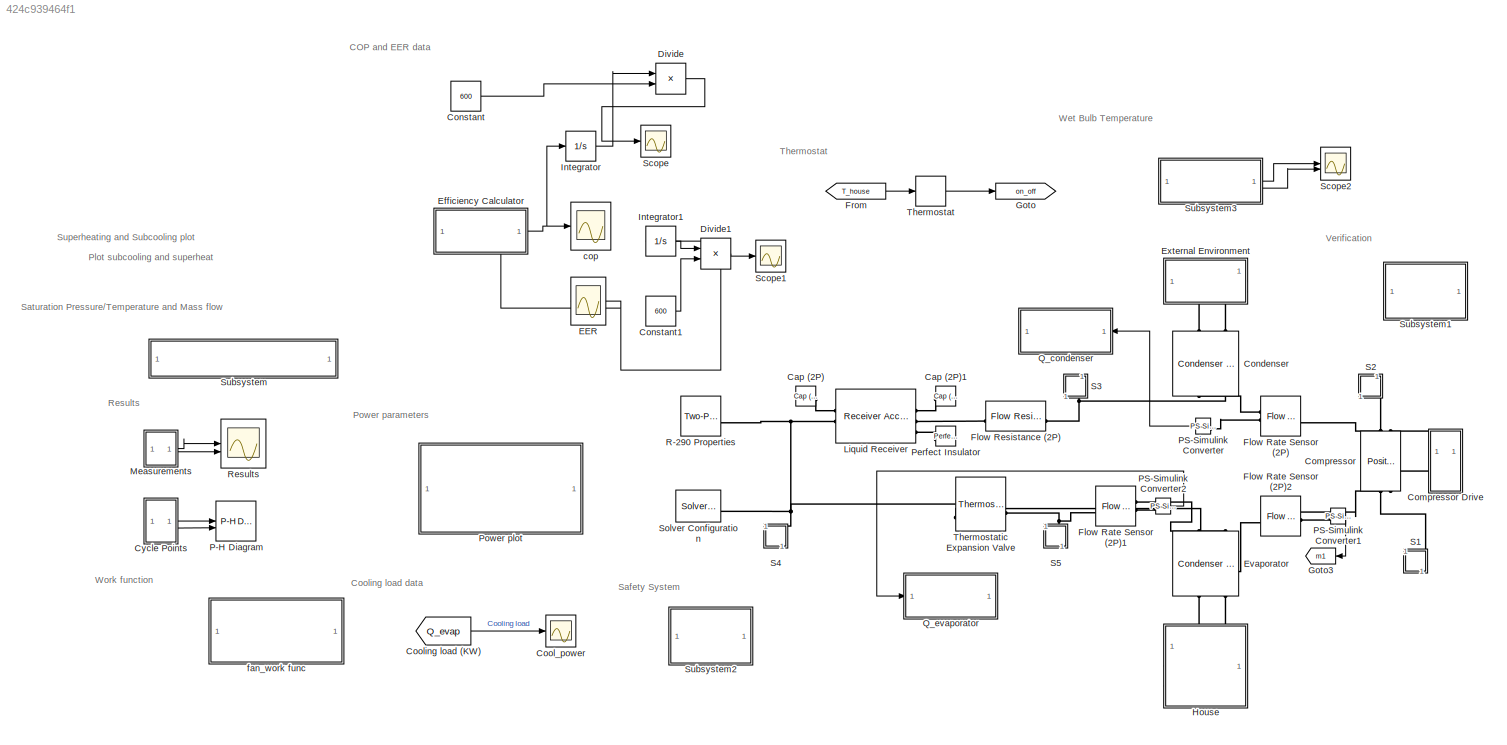
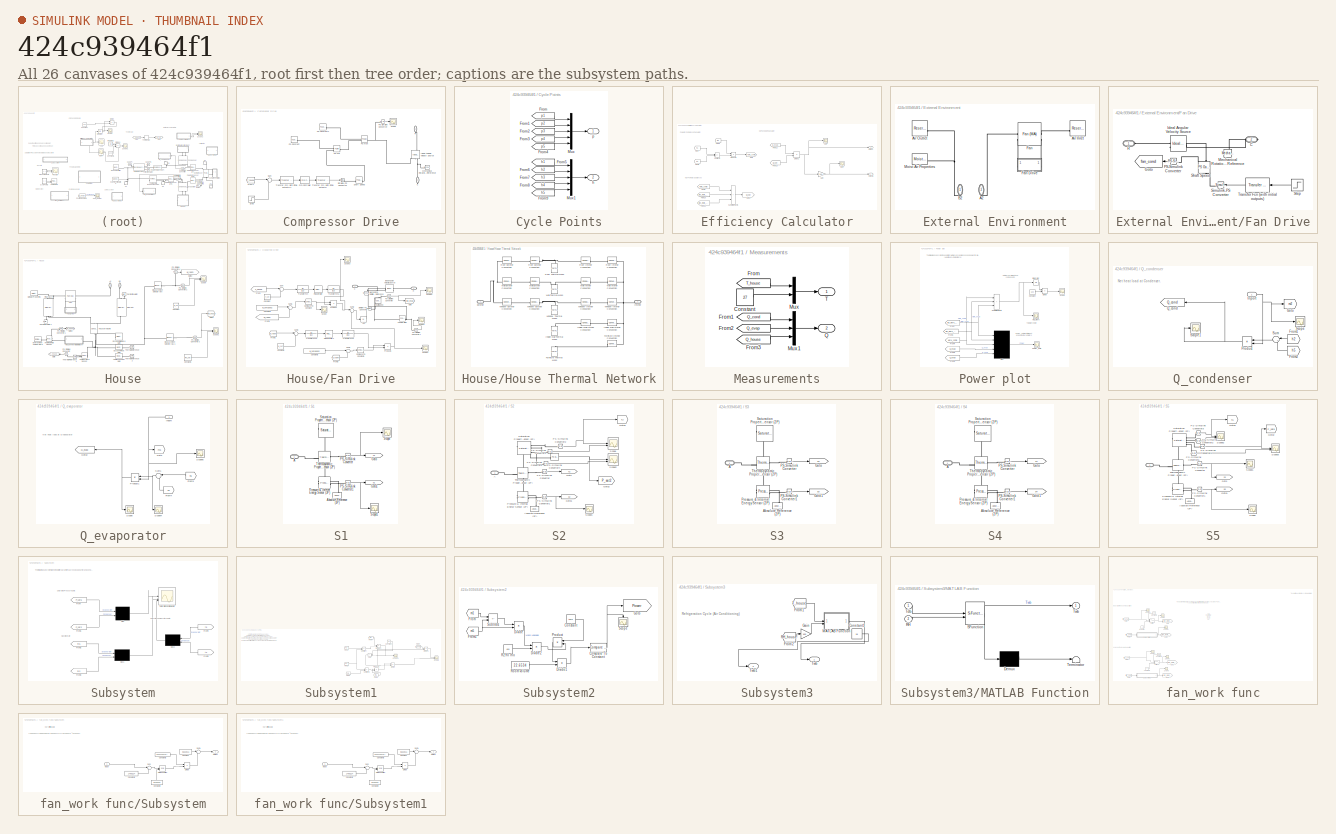
[diagram: thumbnail index - all 26 canvases of the model, root first then tree order]
MODEL slx_424c939464f1
KIND model
CONFIG AbsTol = 1e-3
CONFIG EnableMultiTasking = off
CONFIG FixedStep = auto
CONFIG MaxStep = auto
CONFIG MinStep = auto
CONFIG PreLoadFcn = T_env = 30; % [degC] External environment temperature\nRH_env = 0.5; % External environment relative humidity\n\nT_house_init = 30; % [degC] Initial house temperature\nRH_house_init = 0.5; % Initial house relative humidity\n\nT_set = 22; % [deg] Thermostat set point\n\ntube_D = 0.02; % [m] Refrigerant tube diameter\nduct_W = 0.4; % [m] Air duct width\n\nhouse_L = 20; % [m] House length\nhouse_W = 10; % [m] Ho...<+77ch>
CONFIG RelTol = 1e-3
CONFIG SampleTimeConstraint = Unconstrained
CONFIG SolverName = VariableStepAuto
CONFIG StartTime = 0
CONFIG StopTime = 600
BLOCK [Reference] Cap (2P)  REF=fl_lib/Two-Phase Fluid/Elements/Cap (2P)
  SourceBlock = fl_lib/Two-Phase Fluid/Elements/Cap (2P)
  SourceType = Cap (2P)
BLOCK [Reference] Cap (2P)1  REF=fl_lib/Two-Phase Fluid/Elements/Cap (2P)
  SourceBlock = fl_lib/Two-Phase Fluid/Elements/Cap (2P)
  SourceType = Cap (2P)
BLOCK [Reference] Compressor  REF=SimscapeFluids_lib/Two-Phase Fluid/Fluid Machines/Positive-Displacement
Compressor (2P)
  NameLocation = left
  SourceBlock = SimscapeFluids_lib/Two-Phase Fluid/Fluid Machines/Positive-Displacement\nCompressor (2P)
  SourceType = Positive-Displacement\nCompressor (2P)
BLOCK [SubSystem] Compressor Drive
  NameLocation = right
  PortSchema = {"entries":[{"content":{"sides":[{"content":{"connectorIds":[]},"type":"ConnectorPlacement.EquallySpacedRectSide","uuid":"e1f7673a-ae09-4e38-a748-d03f3a89f634"},{"content":{"connectorIds":[],"side":"RIGHT"},"type":"ConnectorPlacement.EquallySpacedRectSide","uuid":"e2c59df4-5a81-4f6b-ab06-631ef800c0b1"},{"content":{"connectorIds":["LConn1"],"side":"TOP"},"type":"ConnectorPlacement.EquallySpacedRect...<+389ch>
BLOCK [PMIOPort] Compressor Drive/C
  NameLocation = right
  Port = 2
  Side = Right
BLOCK [From] Compressor Drive/From1
  GotoTag = T_house
  TagVisibility = global
BLOCK [Reference] Compressor Drive/Ideal Angular Velocity Source  REF=fl_lib/Mechanical/Mechanical Sources/Ideal Angular
Velocity Source
  NameLocation = right
  SourceBlock = fl_lib/Mechanical/Mechanical Sources/Ideal Angular\nVelocity Source
  SourceType = Ideal Angular\nVelocity Source
BLOCK [Reference] Compressor Drive/Mechanical Rotational Reference  REF=fl_lib/Mechanical/Rotational Elements/Mechanical
Rotational Reference
  SourceBlock = fl_lib/Mechanical/Rotational Elements/Mechanical\nRotational Reference
  SourceType = Mechanical\nRotational Reference
BLOCK [Reference] Compressor Drive/PID Controller  REF=slpidlib/PID Controller
  LibrarySourceBlock = simulink/Continuous/PID Controller
  SourceBlock = slpidlib/PID Controller
  SourceType = PID 1dof
BLOCK [Reference] Compressor Drive/PS Constant  REF=fl_lib/Physical Signals/Sources/PS Constant
  SourceBlock = fl_lib/Physical Signals/Sources/PS Constant
  SourceType = PS Constant
BLOCK [Reference] Compressor Drive/PS Constant1  REF=fl_lib/Physical Signals/Sources/PS Constant
  SourceBlock = fl_lib/Physical Signals/Sources/PS Constant
  SourceType = PS Constant
BLOCK [Reference] Compressor Drive/PS Max  REF=fl_lib/Physical Signals/Nonlinear Operators/PS Max
  SourceBlock = fl_lib/Physical Signals/Nonlinear Operators/PS Max
  SourceType = PS Max
BLOCK [Reference] Compressor Drive/PS Min  REF=fl_lib/Physical Signals/Nonlinear Operators/PS Min
  SourceBlock = fl_lib/Physical Signals/Nonlinear Operators/PS Min
  SourceType = PS Min
BLOCK [Reference] Compressor Drive/PS-Simulink Converter  REF=nesl_utility/PS-Simulink
Converter
  SourceBlock = nesl_utility/PS-Simulink\nConverter
  SourceType = PS-Simulink\nConverter
BLOCK [PMIOPort] Compressor Drive/R
  NameLocation = right
  Side = Left
BLOCK [Scope] Compressor Drive/Scope
  Floating = off
  NumInputPorts = 1
  ScopeSpecificationString = Simulink.scopes.TimeScopeBlockCfg('CurrentConfiguration', extmgr.ConfigurationSet(extmgr.Configuration('Core','General UI',true),extmgr.Configuration('Core','Source UI',true),extmgr.Configuration('Sources','WiredSimulink',true,'DataLoggingVariableName','ScopeData9'),extmgr.Configuration('Visuals','Time Domain',true,'SerializedDisplays',{struct('MinYLimReal','2480.00000','MaxYLimReal','4480.00000',...<+1546ch>
BLOCK [Reference] Compressor Drive/Shaft Speed  REF=fl_lib/Physical Signals/Functions/PS Gain
  SourceBlock = fl_lib/Physical Signals/Functions/PS Gain
  SourceType = PS Gain
BLOCK [Reference] Compressor Drive/Simulink-PS Converter  REF=nesl_utility/Simulink-PS
Converter
  SourceBlock = nesl_utility/Simulink-PS\nConverter
  SourceType = Simulink-PS\nConverter
BLOCK [Step] Compressor Drive/Step
  After = T_set
  SampleTime = 0
BLOCK [Sum] Compressor Drive/Sum
  Inputs = |+-
BLOCK [Reference] Compressor Drive/Transfer Fcn (with initial outputs)  REF=simulink_extras/Additional
Linear/Transfer Fcn
(with initial outputs)
  SourceBlock = simulink_extras/Additional\nLinear/Transfer Fcn\n(with initial outputs)
  SourceType = Transfer Function with Initial Outputs
BLOCK [Reference] Compressor Drive/Transfer Fcn (with initial outputs)1  REF=simulink_extras/Additional
Linear/Transfer Fcn
(with initial outputs)
  SourceBlock = simulink_extras/Additional\nLinear/Transfer Fcn\n(with initial outputs)
  SourceType = Transfer Function with Initial Outputs
BLOCK [Reference] Condenser  REF=SimscapeFluids_lib/Heat Exchangers/Two-Phase Fluid -
Moist Air/Condenser Evaporator
(2P-MA)
  NameLocation = right
  SourceBlock = SimscapeFluids_lib/Heat Exchangers/Two-Phase Fluid -\nMoist Air/Condenser Evaporator\n(2P-MA)
  SourceType = Condenser Evaporator\n(2P-MA)
BLOCK [Constant] Constant
  Value = 600
BLOCK [Constant] Constant1
  Value = 600
BLOCK [Scope] Cool_power
  Floating = off
  NumInputPorts = 1
  ScopeSpecificationString = Simulink.scopes.TimeScopeBlockCfg('CurrentConfiguration', extmgr.ConfigurationSet(extmgr.Configuration('Core','General UI',true),extmgr.Configuration('Core','Source UI',true),extmgr.Configuration('Sources','WiredSimulink',true,'DataLoggingVariableName','ScopeData8'),extmgr.Configuration('Visuals','Time Domain',true,'SerializedDisplays',{struct('MinYLimReal','1.02874','MaxYLimReal','8.40601','YLabe...<+1562ch>
BLOCK [From] Cooling load (KW)
  GotoTag = Q_evap
  TagVisibility = global
BLOCK [SubSystem] Cycle Points
BLOCK [From] Cycle Points/From
  GotoTag = p1
  TagVisibility = global
BLOCK [From] Cycle Points/From1
  GotoTag = p2
  TagVisibility = global
BLOCK [From] Cycle Points/From2
  GotoTag = p3
  TagVisibility = global
BLOCK [From] Cycle Points/From3
  GotoTag = p4
  TagVisibility = global
BLOCK [From] Cycle Points/From4
  GotoTag = p5
  TagVisibility = global
BLOCK [From] Cycle Points/From5
  GotoTag = h1
  TagVisibility = global
BLOCK [From] Cycle Points/From6
  GotoTag = h2
  TagVisibility = global
BLOCK [From] Cycle Points/From7
  GotoTag = h3
  TagVisibility = global
BLOCK [From] Cycle Points/From8
  GotoTag = h4
  TagVisibility = global
BLOCK [From] Cycle Points/From9
  GotoTag = h5
  TagVisibility = global
BLOCK [Mux] Cycle Points/Mux
  DisplayOption = bar
  Inputs = 5
BLOCK [Mux] Cycle Points/Mux1
  DisplayOption = bar
  Inputs = 5
BLOCK [Outport] Cycle Points/h
  Port = 2
BLOCK [Outport] Cycle Points/p
BLOCK [Product] Divide
  Inputs = */
BLOCK [Product] Divide1
  Inputs = */
BLOCK [Scope] EER
  Floating = off
  NumInputPorts = 1
  ScopeSpecificationString = Simulink.scopes.TimeScopeBlockCfg('CurrentConfiguration', extmgr.ConfigurationSet(extmgr.Configuration('Core','General UI',true),extmgr.Configuration('Core','Source UI',true),extmgr.Configuration('Sources','WiredSimulink',true,'DataLoggingVariableName','ScopeData15'),extmgr.Configuration('Visuals','Time Domain',true,'SerializedDisplays',{struct('MinYLimReal','1.44848','MaxYLimReal','19.82724','YLa...<+1801ch>
BLOCK [SubSystem] Efficiency Calculator
  PortSchema = {"entries":[{"content":{"sides":[{"content":{"connectorIds":["Out2"]},"type":"ConnectorPlacement.EquallySpacedRectSide","uuid":"249c547c-2b91-4dd9-9a21-515894d1d1e0"},{"content":{"connectorIds":["Out1"],"side":"RIGHT"},"type":"ConnectorPlacement.EquallySpacedRectSide","uuid":"5c9e8e09-81b7-4d99-abdd-26740fadc77c"},{"content":{"side":"TOP"},"type":"ConnectorPlacement.EquallySpacedRectSide","uuid":"...<+223ch>
BLOCK [Scope] Efficiency Calculator/COP
  Floating = off
  NumInputPorts = 1
  ScopeSpecificationString = Simulink.scopes.TimeScopeBlockCfg('CurrentConfiguration', extmgr.ConfigurationSet(extmgr.Configuration('Core','General UI',true),extmgr.Configuration('Core','Source UI',true),extmgr.Configuration('Sources','WiredSimulink',true,'DataLoggingVariableName','ScopeData9'),extmgr.Configuration('Visuals','Time Domain',true),extmgr.Configuration('Tools','Plot Navigation',true),extmgr.Configuration('Tools',...<+40ch>
BLOCK [Product] Efficiency Calculator/Divide2
  Inputs = */
BLOCK [Scope] Efficiency Calculator/EER
  Floating = off
  NumInputPorts = 1
  ScopeSpecificationString = Simulink.scopes.TimeScopeBlockCfg('CurrentConfiguration', extmgr.ConfigurationSet(extmgr.Configuration('Core','General UI',true),extmgr.Configuration('Core','Source UI',true),extmgr.Configuration('Sources','WiredSimulink',true,'DataLoggingVariableName','ScopeData10'),extmgr.Configuration('Visuals','Time Domain',true),extmgr.Configuration('Tools','Plot Navigation',true),extmgr.Configuration('Tools'...<+41ch>
BLOCK [From] Efficiency Calculator/From
  GotoTag = h1
  TagVisibility = global
BLOCK [From] Efficiency Calculator/From10
  GotoTag = fan_work_cond
  TagVisibility = global
BLOCK [From] Efficiency Calculator/From11
  GotoTag = fan_work_evap
  TagVisibility = global
BLOCK [From] Efficiency Calculator/From12
  GotoTag = Q_evap
  TagVisibility = global
BLOCK [From] Efficiency Calculator/From13
  GotoTag = W_net
  TagVisibility = global
BLOCK [From] Efficiency Calculator/From6
  GotoTag = work_comp
  TagVisibility = global
BLOCK [From] Efficiency Calculator/From8
  GotoTag = h2
  TagVisibility = global
BLOCK [From] Efficiency Calculator/From9
  GotoTag = m1
  TagVisibility = global
BLOCK [Gain] Efficiency Calculator/Gain
  Gain = 3.41
BLOCK [Goto] Efficiency Calculator/Goto
  GotoTag = work_comp
  TagVisibility = global
BLOCK [Goto] Efficiency Calculator/Goto1
  GotoTag = W_net
  TagVisibility = global
BLOCK [Outport] Efficiency Calculator/Output
BLOCK [Outport] Efficiency Calculator/Output1
  Port = 2
BLOCK [Product] Efficiency Calculator/Product2
BLOCK [Sum] Efficiency Calculator/Subtract2
  IconShape = rectangular
  Inputs = -+
BLOCK [Sum] Efficiency Calculator/Sum of Elements
  IconShape = rectangular
  Inputs = +++
BLOCK [Reference] Evaporator  REF=SimscapeFluids_lib/Heat Exchangers/Two-Phase Fluid -
Moist Air/Condenser Evaporator
(2P-MA)
  NameLocation = left
  SourceBlock = SimscapeFluids_lib/Heat Exchangers/Two-Phase Fluid -\nMoist Air/Condenser Evaporator\n(2P-MA)
  SourceType = Condenser Evaporator\n(2P-MA)
BLOCK [SubSystem] External Environment
  NameLocation = right
  PortSchema = {"entries":[{"content":{"sides":[{"content":{"connectorIds":[]},"type":"ConnectorPlacement.EquallySpacedRectSide","uuid":"e1f7673a-ae09-4e38-a748-d03f3a89f634"},{"content":{"connectorIds":[],"side":"RIGHT"},"type":"ConnectorPlacement.EquallySpacedRectSide","uuid":"e2c59df4-5a81-4f6b-ab06-631ef800c0b1"},{"content":{"connectorIds":[],"side":"TOP"},"type":"ConnectorPlacement.EquallySpacedRectSide","u...<+390ch>
  Tag = PublishSubsystem
BLOCK [PMIOPort] External Environment/A2
  NameLocation = right
  Port = 2
  Side = Right
BLOCK [Reference] External Environment/Air Inlet  REF=fl_lib/Moist Air/Elements/Reservoir (MA)
  SourceBlock = fl_lib/Moist Air/Elements/Reservoir (MA)
  SourceType = Reservoir (MA)
BLOCK [Reference] External Environment/Air Outlet  REF=fl_lib/Moist Air/Elements/Reservoir (MA)
  SourceBlock = fl_lib/Moist Air/Elements/Reservoir (MA)
  SourceType = Reservoir (MA)
BLOCK [PMIOPort] External Environment/B2
  NameLocation = right
  Side = Right
BLOCK [Reference] External Environment/Fan  REF=SimscapeFluids_lib/Moist Air/Turbomachinery/Fan (MA)
  SourceBlock = SimscapeFluids_lib/Moist Air/Turbomachinery/Fan (MA)
  SourceType = Fan (MA)
BLOCK [SubSystem] External Environment/Fan Drive
BLOCK [PMIOPort] External Environment/Fan Drive/C
  Port = 2
  Side = Right
BLOCK [Goto] External Environment/Fan Drive/Goto
  GotoTag = fan_cond
  TagVisibility = global
BLOCK [Reference] External Environment/Fan Drive/Ideal Angular Velocity Source  REF=fl_lib/Mechanical/Mechanical Sources/Ideal Angular
Velocity Source
  SourceBlock = fl_lib/Mechanical/Mechanical Sources/Ideal Angular\nVelocity Source
  SourceType = Ideal Angular\nVelocity Source
BLOCK [Reference] External Environment/Fan Drive/Mechanical Rotational Reference  REF=fl_lib/Mechanical/Rotational Elements/Mechanical
Rotational Reference
  NameLocation = right
  SourceBlock = fl_lib/Mechanical/Rotational Elements/Mechanical\nRotational Reference
  SourceType = Mechanical\nRotational Reference
BLOCK [Reference] External Environment/Fan Drive/PS-Simulink Converter  REF=nesl_utility/PS-Simulink
Converter
  SourceBlock = nesl_utility/PS-Simulink\nConverter
  SourceType = PS-Simulink\nConverter
BLOCK [PMIOPort] External Environment/Fan Drive/R
  Side = Left
BLOCK [Reference] External Environment/Fan Drive/Shaft Speed  REF=fl_lib/Physical Signals/Functions/PS Gain
  NameLocation = left
  SourceBlock = fl_lib/Physical Signals/Functions/PS Gain
  SourceType = PS Gain
BLOCK [Reference] External Environment/Fan Drive/Simulink-PS Converter  REF=nesl_utility/Simulink-PS
Converter
  SourceBlock = nesl_utility/Simulink-PS\nConverter
  SourceType = Simulink-PS\nConverter
BLOCK [Step] External Environment/Fan Drive/Step
  SampleTime = 0
  Time = 0
BLOCK [Reference] External Environment/Fan Drive/Transfer Fcn (with initial outputs)  REF=simulink_extras/Additional
Linear/Transfer Fcn
(with initial outputs)
  SourceBlock = simulink_extras/Additional\nLinear/Transfer Fcn\n(with initial outputs)
  SourceType = Transfer Function with Initial Outputs
BLOCK [Reference] External Environment/Moist Air Properties  REF=fl_lib/Moist Air/Utilities/Moist Air Properties
(MA)
  SourceBlock = fl_lib/Moist Air/Utilities/Moist Air Properties\n(MA)
  SourceType = Moist Air Properties\n(MA)
BLOCK [Reference] Flow Rate Sensor (2P)  REF=fl_lib/Two-Phase Fluid/Sensors/Flow Rate Sensor
(2P)
  SourceBlock = fl_lib/Two-Phase Fluid/Sensors/Flow Rate Sensor\n(2P)
  SourceType = Flow Rate Sensor\n(2P)
BLOCK [Reference] Flow Rate Sensor (2P)1  REF=fl_lib/Two-Phase Fluid/Sensors/Flow Rate Sensor
(2P)
  SourceBlock = fl_lib/Two-Phase Fluid/Sensors/Flow Rate Sensor\n(2P)
  SourceType = Flow Rate Sensor\n(2P)
BLOCK [Reference] Flow Rate Sensor (2P)2  REF=fl_lib/Two-Phase Fluid/Sensors/Flow Rate Sensor
(2P)
  SourceBlock = fl_lib/Two-Phase Fluid/Sensors/Flow Rate Sensor\n(2P)
  SourceType = Flow Rate Sensor\n(2P)
BLOCK [Reference] Flow Resistance (2P)  REF=fl_lib/Two-Phase Fluid/Elements/Flow Resistance (2P)
  SourceBlock = fl_lib/Two-Phase Fluid/Elements/Flow Resistance (2P)
  SourceType = Flow Resistance (2P)
BLOCK [From] From
  GotoTag = T_house
  TagVisibility = global
BLOCK [Goto] Goto
  GotoTag = on_off
  TagVisibility = global
BLOCK [Goto] Goto3
  GotoTag = m1
  TagVisibility = global
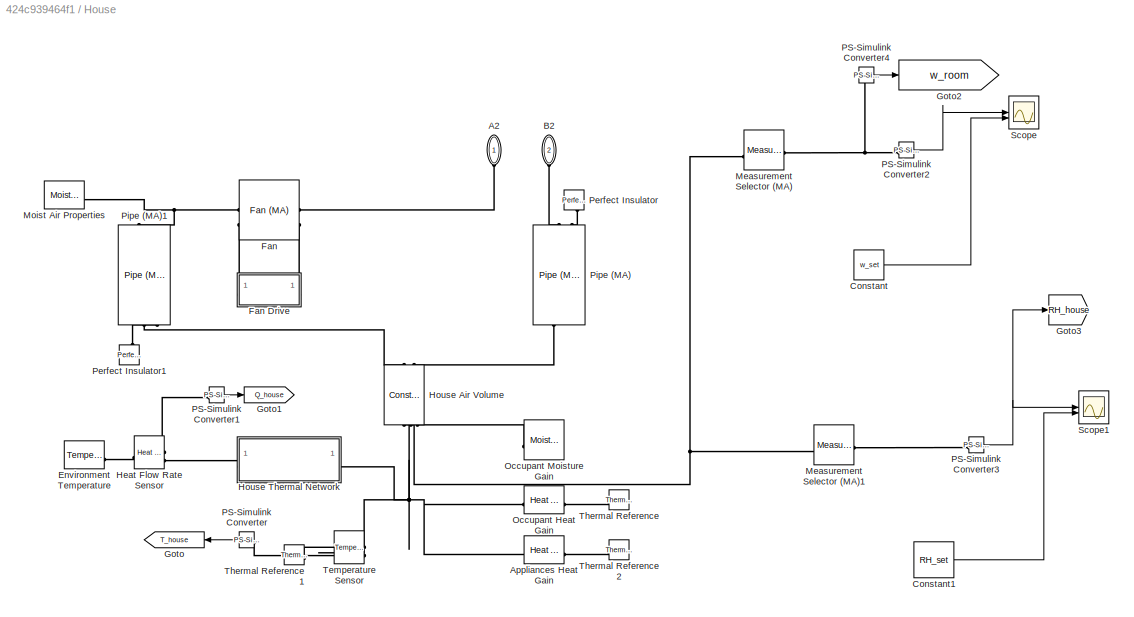
BLOCK [SubSystem] House
  NameLocation = right
  PortSchema = {"entries":[{"content":{"sides":[{"content":{"connectorIds":[]},"type":"ConnectorPlacement.EquallySpacedRectSide","uuid":"e1f7673a-ae09-4e38-a748-d03f3a89f634"},{"content":{"connectorIds":[],"side":"RIGHT"},"type":"ConnectorPlacement.EquallySpacedRectSide","uuid":"e2c59df4-5a81-4f6b-ab06-631ef800c0b1"},{"content":{"connectorIds":["LConn1","LConn2"],"side":"TOP"},"type":"ConnectorPlacement.EquallyS...<+246ch>
  Tag = PublishSubsystem
BLOCK [PMIOPort] House/A2
  NameLocation = right
  Side = Left
BLOCK [Reference] House/Appliances Heat Gain  REF=fl_lib/Thermal/Thermal Sources/Heat Flow Rate
Source
  SourceBlock = fl_lib/Thermal/Thermal Sources/Heat Flow Rate\nSource
  SourceType = Heat Flow Rate\nSource
BLOCK [PMIOPort] House/B2
  NameLocation = right
  Port = 2
  Side = Left
BLOCK [Constant] House/Constant
  Value = w_set
BLOCK [Constant] House/Constant1
  Value = RH_set
BLOCK [Reference] House/Environment Temperature  REF=fl_lib/Thermal/Thermal Sources/Temperature Source
  SourceBlock = fl_lib/Thermal/Thermal Sources/Temperature Source
  SourceType = Temperature Source
BLOCK [Reference] House/Fan  REF=SimscapeFluids_lib/Moist Air/Turbomachinery/Fan (MA)
  SourceBlock = SimscapeFluids_lib/Moist Air/Turbomachinery/Fan (MA)
  SourceType = Fan (MA)
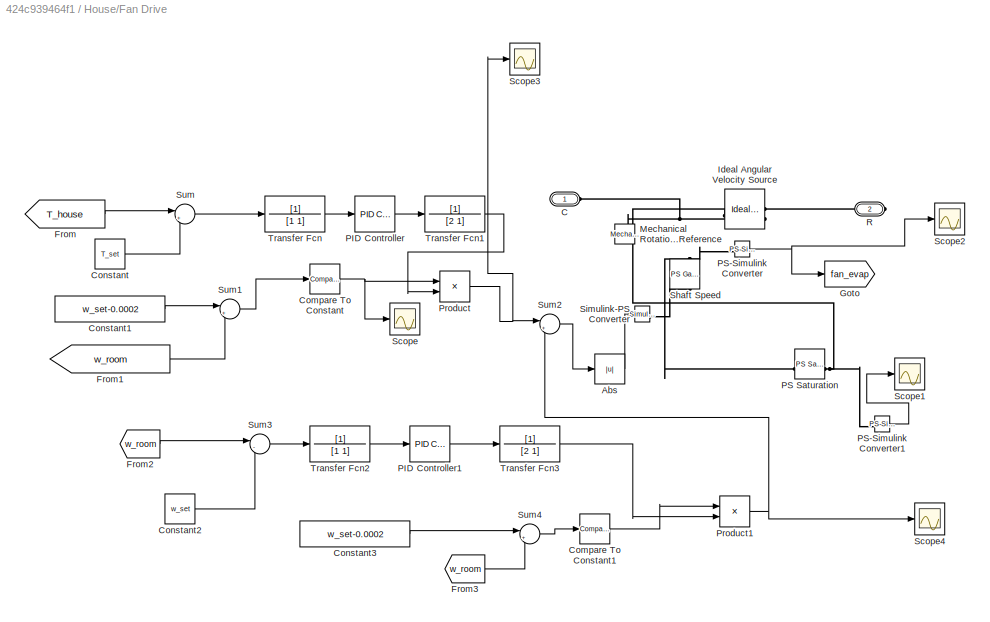
BLOCK [SubSystem] House/Fan Drive
BLOCK [Abs] House/Fan Drive/Abs
  SaturateOnIntegerOverflow = off
BLOCK [PMIOPort] House/Fan Drive/C
  Side = Left
BLOCK [Reference] House/Fan Drive/Compare To Constant  REF=simulink/Logic and Bit
Operations/Compare
To Constant
  SourceBlock = simulink/Logic and Bit\nOperations/Compare\nTo Constant
  SourceType = Compare To Constant
BLOCK [Reference] House/Fan Drive/Compare To Constant1  REF=simulink/Logic and Bit
Operations/Compare
To Constant
  SourceBlock = simulink/Logic and Bit\nOperations/Compare\nTo Constant
  SourceType = Compare To Constant
BLOCK [Constant] House/Fan Drive/Constant
  Value = T_set
BLOCK [Constant] House/Fan Drive/Constant1
  Value = w_set-0.0002
BLOCK [Constant] House/Fan Drive/Constant2
  Value = w_set
BLOCK [Constant] House/Fan Drive/Constant3
  Value = w_set-0.0002
BLOCK [From] House/Fan Drive/From
  GotoTag = T_house
  TagVisibility = global
BLOCK [From] House/Fan Drive/From1
  GotoTag = w_room
  TagVisibility = global
BLOCK [From] House/Fan Drive/From2
  GotoTag = w_room
  TagVisibility = global
BLOCK [From] House/Fan Drive/From3
  GotoTag = w_room
  TagVisibility = global
BLOCK [Goto] House/Fan Drive/Goto
  GotoTag = fan_evap
  TagVisibility = global
BLOCK [Reference] House/Fan Drive/Ideal Angular Velocity Source  REF=fl_lib/Mechanical/Mechanical Sources/Ideal Angular
Velocity Source
  SourceBlock = fl_lib/Mechanical/Mechanical Sources/Ideal Angular\nVelocity Source
  SourceType = Ideal Angular\nVelocity Source
BLOCK [Reference] House/Fan Drive/Mechanical Rotational Reference  REF=fl_lib/Mechanical/Rotational Elements/Mechanical
Rotational Reference
  NameLocation = right
  SourceBlock = fl_lib/Mechanical/Rotational Elements/Mechanical\nRotational Reference
  SourceType = Mechanical\nRotational Reference
BLOCK [Reference] House/Fan Drive/PID Controller  REF=slpidlib/PID Controller
  LibrarySourceBlock = simulink/Continuous/PID Controller
  SourceBlock = slpidlib/PID Controller
  SourceType = PID 1dof
BLOCK [Reference] House/Fan Drive/PID Controller1  REF=slpidlib/PID Controller
  LibrarySourceBlock = simulink/Continuous/PID Controller
  SourceBlock = slpidlib/PID Controller
  SourceType = PID 1dof
BLOCK [Reference] House/Fan Drive/PS Saturation  REF=fl_lib/Physical Signals/Nonlinear Operators/PS Saturation
  SourceBlock = fl_lib/Physical Signals/Nonlinear Operators/PS Saturation
  SourceType = PS Saturation
BLOCK [Reference] House/Fan Drive/PS-Simulink Converter  REF=nesl_utility/PS-Simulink
Converter
  SourceBlock = nesl_utility/PS-Simulink\nConverter
  SourceType = PS-Simulink\nConverter
BLOCK [Reference] House/Fan Drive/PS-Simulink Converter1  REF=nesl_utility/PS-Simulink
Converter
  SourceBlock = nesl_utility/PS-Simulink\nConverter
  SourceType = PS-Simulink\nConverter
BLOCK [Product] House/Fan Drive/Product
BLOCK [Product] House/Fan Drive/Product1
BLOCK [PMIOPort] House/Fan Drive/R
  Port = 2
  Side = Right
BLOCK [Scope] House/Fan Drive/Scope
  Floating = off
  NumInputPorts = 1
  ScopeSpecificationString = Simulink.scopes.TimeScopeBlockCfg('CurrentConfiguration', extmgr.ConfigurationSet(extmgr.Configuration('Core','General UI',true),extmgr.Configuration('Core','Source UI',true),extmgr.Configuration('Sources','WiredSimulink',true,'DataLoggingVariableName','ScopeData1'),extmgr.Configuration('Visuals','Time Domain',true),extmgr.Configuration('Tools','Plot Navigation',true),extmgr.Configuration('Tools',...<+40ch>
BLOCK [Scope] House/Fan Drive/Scope1
  Floating = off
  NumInputPorts = 1
  ScopeSpecificationString = Simulink.scopes.TimeScopeBlockCfg('CurrentConfiguration', extmgr.ConfigurationSet(extmgr.Configuration('Core','General UI',true),extmgr.Configuration('Core','Source UI',true),extmgr.Configuration('Sources','WiredSimulink',true,'DataLoggingVariableName','ScopeData2'),extmgr.Configuration('Visuals','Time Domain',true,'SerializedDisplays',{struct('MinYLimReal','542.97605','MaxYLimReal','1113.21556','...<+1556ch>
BLOCK [Scope] House/Fan Drive/Scope2
  Floating = off
  NumInputPorts = 1
  ScopeSpecificationString = Simulink.scopes.TimeScopeBlockCfg('CurrentConfiguration', extmgr.ConfigurationSet(extmgr.Configuration('Core','General UI',true),extmgr.Configuration('Core','Source UI',true),extmgr.Configuration('Sources','WiredSimulink',true,'DataLoggingVariableName','ScopeData13'),extmgr.Configuration('Visuals','Time Domain',true,'SerializedDisplays',{struct('MinYLimReal','-132.02395','MaxYLimReal','1188.21556'...<+1556ch>
BLOCK [Scope] House/Fan Drive/Scope3
  Floating = off
  NumInputPorts = 1
  ScopeSpecificationString = Simulink.scopes.TimeScopeBlockCfg('CurrentConfiguration', extmgr.ConfigurationSet(extmgr.Configuration('Core','General UI',true),extmgr.Configuration('Core','Source UI',true),extmgr.Configuration('Sources','WiredSimulink',true,'DataLoggingVariableName','ScopeData15'),extmgr.Configuration('Visuals','Time Domain',true,'SerializedDisplays',{struct('MinYLimReal','-0.11191','MaxYLimReal','1.00723','YLa...<+1524ch>
BLOCK [Scope] House/Fan Drive/Scope4
  Floating = off
  NumInputPorts = 1
  ScopeSpecificationString = Simulink.scopes.TimeScopeBlockCfg('CurrentConfiguration', extmgr.ConfigurationSet(extmgr.Configuration('Core','General UI',true),extmgr.Configuration('Core','Source UI',true),extmgr.Configuration('Sources','WiredSimulink',true,'DataLoggingVariableName','ScopeData16'),extmgr.Configuration('Visuals','Time Domain',true,'SerializedDisplays',{struct('MinYLimReal','-0.000003','MaxYLimReal','0.000029','Y...<+1533ch>
BLOCK [Reference] House/Fan Drive/Shaft Speed  REF=fl_lib/Physical Signals/Functions/PS Gain
  NameLocation = right
  SourceBlock = fl_lib/Physical Signals/Functions/PS Gain
  SourceType = PS Gain
BLOCK [Reference] House/Fan Drive/Simulink-PS Converter  REF=nesl_utility/Simulink-PS
Converter
  SourceBlock = nesl_utility/Simulink-PS\nConverter
  SourceType = Simulink-PS\nConverter
BLOCK [Sum] House/Fan Drive/Sum
  Inputs = |+-
BLOCK [Sum] House/Fan Drive/Sum1
  Inputs = |+-
BLOCK [Sum] House/Fan Drive/Sum2
  Inputs = |++
BLOCK [Sum] House/Fan Drive/Sum3
  Inputs = |-+
BLOCK [Sum] House/Fan Drive/Sum4
  Inputs = |+-
BLOCK [TransferFcn] House/Fan Drive/Transfer Fcn
  Denominator = [1 1]
BLOCK [TransferFcn] House/Fan Drive/Transfer Fcn1
  Denominator = [2 1]
BLOCK [TransferFcn] House/Fan Drive/Transfer Fcn2
  Denominator = [1 1]
BLOCK [TransferFcn] House/Fan Drive/Transfer Fcn3
  Denominator = [2 1]
BLOCK [Goto] House/Goto
  GotoTag = T_house
  TagVisibility = global
BLOCK [Goto] House/Goto1
  GotoTag = Q_house
  TagVisibility = global
BLOCK [Goto] House/Goto2
  GotoTag = w_room
  TagVisibility = global
BLOCK [Goto] House/Goto3
  GotoTag = RH_house
  TagVisibility = global
BLOCK [Reference] House/Heat Flow Rate Sensor  REF=fl_lib/Thermal/Thermal Sensors/Heat Flow Rate
Sensor
  SourceBlock = fl_lib/Thermal/Thermal Sensors/Heat Flow Rate\nSensor
  SourceType = Heat Flow Rate\nSensor
BLOCK [Reference] House/House Air Volume  REF=fl_lib/Moist Air/Elements/Constant Volume
Chamber (MA)
  NameLocation = right
  SourceBlock = fl_lib/Moist Air/Elements/Constant Volume\nChamber (MA)
  SourceType = Constant Volume\nChamber (MA)
BLOCK [SubSystem] House/House Thermal Network
  Tag = PublishSubsystem
BLOCK [PMIOPort] House/House Thermal Network/Exterior
  Side = Left
BLOCK [Reference] House/House Thermal Network/Furniture Thermal Mass  REF=fl_lib/Thermal/Thermal Elements/Thermal Mass
  NameLocation = right
  SourceBlock = fl_lib/Thermal/Thermal Elements/Thermal Mass
  SourceType = Thermal Mass
BLOCK [Reference] House/House Thermal Network/Furniture-Interior Convection  REF=fl_lib/Thermal/Thermal Elements/Convective Heat
Transfer
  SourceBlock = fl_lib/Thermal/Thermal Elements/Convective Heat\nTransfer
  SourceType = Convective Heat\nTransfer
BLOCK [Reference] House/House Thermal Network/Inside Wall Thermal Mass  REF=fl_lib/Thermal/Thermal Elements/Thermal Mass
  NameLocation = right
  SourceBlock = fl_lib/Thermal/Thermal Elements/Thermal Mass
  SourceType = Thermal Mass
BLOCK [Reference] House/House Thermal Network/Inside Wall-Interior Conduction  REF=fl_lib/Thermal/Thermal Elements/Conductive Heat
Transfer
  SourceBlock = fl_lib/Thermal/Thermal Elements/Conductive Heat\nTransfer
  SourceType = Conductive Heat\nTransfer
BLOCK [Reference] House/House Thermal Network/Inside Wall-Interior Convection  REF=fl_lib/Thermal/Thermal Elements/Convective Heat
Transfer
  SourceBlock = fl_lib/Thermal/Thermal Elements/Convective Heat\nTransfer
  SourceType = Convective Heat\nTransfer
BLOCK [PMIOPort] House/House Thermal Network/Interior
  Port = 2
  Side = Right
BLOCK [Reference] House/House Thermal Network/Roof Thermal Mass  REF=fl_lib/Thermal/Thermal Elements/Thermal Mass
  NameLocation = right
  SourceBlock = fl_lib/Thermal/Thermal Elements/Thermal Mass
  SourceType = Thermal Mass
BLOCK [Reference] House/House Thermal Network/Roof-Exterior Conduction  REF=fl_lib/Thermal/Thermal Elements/Conductive Heat
Transfer
  SourceBlock = fl_lib/Thermal/Thermal Elements/Conductive Heat\nTransfer
  SourceType = Conductive Heat\nTransfer
BLOCK [Reference] House/House Thermal Network/Roof-Exterior Convection  REF=fl_lib/Thermal/Thermal Elements/Convective Heat
Transfer
  SourceBlock = fl_lib/Thermal/Thermal Elements/Convective Heat\nTransfer
  SourceType = Convective Heat\nTransfer
BLOCK [Reference] House/House Thermal Network/Roof-Interior Conduction  REF=fl_lib/Thermal/Thermal Elements/Conductive Heat
Transfer
  SourceBlock = fl_lib/Thermal/Thermal Elements/Conductive Heat\nTransfer
  SourceType = Conductive Heat\nTransfer
BLOCK [Reference] House/House Thermal Network/Roof-Interior Convection  REF=fl_lib/Thermal/Thermal Elements/Convective Heat
Transfer
  SourceBlock = fl_lib/Thermal/Thermal Elements/Convective Heat\nTransfer
  SourceType = Convective Heat\nTransfer
BLOCK [Reference] House/House Thermal Network/Wall Thermal Mass  REF=fl_lib/Thermal/Thermal Elements/Thermal Mass
  NameLocation = right
  SourceBlock = fl_lib/Thermal/Thermal Elements/Thermal Mass
  SourceType = Thermal Mass
BLOCK [Reference] House/House Thermal Network/Wall-Exterior Conduction  REF=fl_lib/Thermal/Thermal Elements/Conductive Heat
Transfer
  SourceBlock = fl_lib/Thermal/Thermal Elements/Conductive Heat\nTransfer
  SourceType = Conductive Heat\nTransfer
BLOCK [Reference] House/House Thermal Network/Wall-Exterior Convection  REF=fl_lib/Thermal/Thermal Elements/Convective Heat
Transfer
  SourceBlock = fl_lib/Thermal/Thermal Elements/Convective Heat\nTransfer
  SourceType = Convective Heat\nTransfer
BLOCK [Reference] House/House Thermal Network/Wall-Interior Conduction  REF=fl_lib/Thermal/Thermal Elements/Conductive Heat
Transfer
  SourceBlock = fl_lib/Thermal/Thermal Elements/Conductive Heat\nTransfer
  SourceType = Conductive Heat\nTransfer
BLOCK [Reference] House/House Thermal Network/Wall-Interior Convection  REF=fl_lib/Thermal/Thermal Elements/Convective Heat
Transfer
  SourceBlock = fl_lib/Thermal/Thermal Elements/Convective Heat\nTransfer
  SourceType = Convective Heat\nTransfer
BLOCK [Reference] House/House Thermal Network/Window Thermal Mass  REF=fl_lib/Thermal/Thermal Elements/Thermal Mass
  NameLocation = right
  SourceBlock = fl_lib/Thermal/Thermal Elements/Thermal Mass
  SourceType = Thermal Mass
BLOCK [Reference] House/House Thermal Network/Window-Exterior Conduction  REF=fl_lib/Thermal/Thermal Elements/Conductive Heat
Transfer
  SourceBlock = fl_lib/Thermal/Thermal Elements/Conductive Heat\nTransfer
  SourceType = Conductive Heat\nTransfer
BLOCK [Reference] House/House Thermal Network/Window-Exterior Convection  REF=fl_lib/Thermal/Thermal Elements/Convective Heat
Transfer
  SourceBlock = fl_lib/Thermal/Thermal Elements/Convective Heat\nTransfer
  SourceType = Convective Heat\nTransfer
BLOCK [Reference] House/House Thermal Network/Window-Interior Conduction  REF=fl_lib/Thermal/Thermal Elements/Conductive Heat
Transfer
  SourceBlock = fl_lib/Thermal/Thermal Elements/Conductive Heat\nTransfer
  SourceType = Conductive Heat\nTransfer
BLOCK [Reference] House/House Thermal Network/Window-Interior Convection  REF=fl_lib/Thermal/Thermal Elements/Convective Heat
Transfer
  SourceBlock = fl_lib/Thermal/Thermal Elements/Convective Heat\nTransfer
  SourceType = Convective Heat\nTransfer
BLOCK [Reference] House/Measurement Selector (MA)  REF=fl_lib/Moist Air/Sensors/Measurement Selector
(MA)
  SourceBlock = fl_lib/Moist Air/Sensors/Measurement Selector\n(MA)
  SourceType = Measurement Selector\n(MA)
BLOCK [Reference] House/Measurement Selector (MA)1  REF=fl_lib/Moist Air/Sensors/Measurement Selector
(MA)
  SourceBlock = fl_lib/Moist Air/Sensors/Measurement Selector\n(MA)
  SourceType = Measurement Selector\n(MA)
BLOCK [Reference] House/Moist Air Properties  REF=fl_lib/Moist Air/Utilities/Moist Air Properties
(MA)
  SourceBlock = fl_lib/Moist Air/Utilities/Moist Air Properties\n(MA)
  SourceType = Moist Air Properties\n(MA)
BLOCK [Reference] House/Occupant Heat Gain  REF=fl_lib/Thermal/Thermal Sources/Heat Flow Rate
Source
  SourceBlock = fl_lib/Thermal/Thermal Sources/Heat Flow Rate\nSource
  SourceType = Heat Flow Rate\nSource
BLOCK [Reference] House/Occupant Moisture Gain  REF=fl_lib/Moist Air/Sources/Moisture & Trace Gas
Sources/Moisture Source (MA)
  SourceBlock = fl_lib/Moist Air/Sources/Moisture & Trace Gas\nSources/Moisture Source (MA)
  SourceType = Moisture Source (MA)
BLOCK [Reference] House/PS-Simulink Converter  REF=nesl_utility/PS-Simulink
Converter
  SourceBlock = nesl_utility/PS-Simulink\nConverter
  SourceType = PS-Simulink\nConverter
BLOCK [Reference] House/PS-Simulink Converter1  REF=nesl_utility/PS-Simulink
Converter
  SourceBlock = nesl_utility/PS-Simulink\nConverter
  SourceType = PS-Simulink\nConverter
BLOCK [Reference] House/PS-Simulink Converter2  REF=nesl_utility/PS-Simulink
Converter
  SourceBlock = nesl_utility/PS-Simulink\nConverter
  SourceType = PS-Simulink\nConverter
BLOCK [Reference] House/PS-Simulink Converter3  REF=nesl_utility/PS-Simulink
Converter
  SourceBlock = nesl_utility/PS-Simulink\nConverter
  SourceType = PS-Simulink\nConverter
BLOCK [Reference] House/PS-Simulink Converter4  REF=nesl_utility/PS-Simulink
Converter
  SourceBlock = nesl_utility/PS-Simulink\nConverter
  SourceType = PS-Simulink\nConverter
BLOCK [Reference] House/Perfect Insulator  REF=fl_lib/Thermal/Thermal Elements/Perfect Insulator
  NameLocation = left
  SourceBlock = fl_lib/Thermal/Thermal Elements/Perfect Insulator
  SourceType = Perfect Insulator
BLOCK [Reference] House/Perfect Insulator1  REF=fl_lib/Thermal/Thermal Elements/Perfect Insulator
  NameLocation = right
  SourceBlock = fl_lib/Thermal/Thermal Elements/Perfect Insulator
  SourceType = Perfect Insulator
BLOCK [Reference] House/Pipe (MA)  REF=fl_lib/Moist Air/Elements/Pipe (MA)
  NameLocation = left
  SourceBlock = fl_lib/Moist Air/Elements/Pipe (MA)
  SourceType = Pipe (MA)
BLOCK [Reference] House/Pipe (MA)1  REF=fl_lib/Moist Air/Elements/Pipe (MA)
  NameLocation = right
  SourceBlock = fl_lib/Moist Air/Elements/Pipe (MA)
  SourceType = Pipe (MA)
BLOCK [Scope] House/Scope
  Floating = off
  NumInputPorts = 2
  ScopeSpecificationString = Simulink.scopes.TimeScopeBlockCfg('CurrentConfiguration', extmgr.ConfigurationSet(extmgr.Configuration('Core','General UI',true),extmgr.Configuration('Core','Source UI',true),extmgr.Configuration('Sources','WiredSimulink',true,'DataLoggingVariableName','ScopeData1'),extmgr.Configuration('Visuals','Time Domain',true,'SerializedDisplays',{struct('MinYLimReal','0.00656','MaxYLimReal','0.01094','YLabe...<+1572ch>
BLOCK [Scope] House/Scope1
  Floating = off
  NumInputPorts = 2
  ScopeSpecificationString = Simulink.scopes.TimeScopeBlockCfg('CurrentConfiguration', extmgr.ConfigurationSet(extmgr.Configuration('Core','General UI',true),extmgr.Configuration('Core','Source UI',true),extmgr.Configuration('Sources','WiredSimulink',true,'DataLoggingVariableName','ScopeData2'),extmgr.Configuration('Visuals','Time Domain',true,'SerializedDisplays',{struct('MinYLimReal','0.30885','MaxYLimReal','0.48791','YLabe...<+1561ch>
BLOCK [Reference] House/Temperature Sensor  REF=fl_lib/Thermal/Thermal Sensors/Temperature Sensor
  SourceBlock = fl_lib/Thermal/Thermal Sensors/Temperature Sensor
  SourceType = Temperature Sensor
BLOCK [Reference] House/Thermal Reference  REF=fl_lib/Thermal/Thermal Elements/Thermal Reference
  SourceBlock = fl_lib/Thermal/Thermal Elements/Thermal Reference
  SourceType = Thermal Reference
BLOCK [Reference] House/Thermal Reference1  REF=fl_lib/Thermal/Thermal Elements/Thermal Reference
  SourceBlock = fl_lib/Thermal/Thermal Elements/Thermal Reference
  SourceType = Thermal Reference
BLOCK [Reference] House/Thermal Reference2  REF=fl_lib/Thermal/Thermal Elements/Thermal Reference
  SourceBlock = fl_lib/Thermal/Thermal Elements/Thermal Reference
  SourceType = Thermal Reference
BLOCK [Integrator] Integrator
BLOCK [Integrator] Integrator1
BLOCK [Reference] Liquid Receiver  REF=SimscapeFluids_lib/Two-Phase Fluid/Tanks & Accumulators/Receiver Accumulator
(2P)
  SourceBlock = SimscapeFluids_lib/Two-Phase Fluid/Tanks & Accumulators/Receiver Accumulator\n(2P)
  SourceType = Receiver Accumulator\n(2P)
BLOCK [SubSystem] Measurements
BLOCK [Constant] Measurements/Constant
  Value = 27
BLOCK [From] Measurements/From
  GotoTag = T_house
  TagVisibility = global
BLOCK [From] Measurements/From1
  GotoTag = Q_cond
  TagVisibility = global
BLOCK [From] Measurements/From2
  GotoTag = Q_evap
  TagVisibility = global
BLOCK [From] Measurements/From3
  GotoTag = Q_house
  TagVisibility = global
BLOCK [Mux] Measurements/Mux
  DisplayOption = bar
  Inputs = 2
BLOCK [Mux] Measurements/Mux1
  DisplayOption = bar
  Inputs = 3
BLOCK [Outport] Measurements/Q
  Port = 2
BLOCK [Outport] Measurements/T
BLOCK [Reference] P-H Diagram  REF=SimscapeFluids_lib/Two-Phase Fluid/Utilities/P-H Diagram (2P)
  SourceBlock = SimscapeFluids_lib/Two-Phase Fluid/Utilities/P-H Diagram (2P)
  SourceType = P-H Diagram (2P)
  UserDataPersistent = on
BLOCK [Reference] PS-Simulink Converter  REF=nesl_utility/PS-Simulink
Converter
  SourceBlock = nesl_utility/PS-Simulink\nConverter
  SourceType = PS-Simulink\nConverter
BLOCK [Reference] PS-Simulink Converter1  REF=nesl_utility/PS-Simulink
Converter
  SourceBlock = nesl_utility/PS-Simulink\nConverter
  SourceType = PS-Simulink\nConverter
BLOCK [Reference] PS-Simulink Converter2  REF=nesl_utility/PS-Simulink
Converter
  SourceBlock = nesl_utility/PS-Simulink\nConverter
  SourceType = PS-Simulink\nConverter
BLOCK [Reference] Perfect Insulator  REF=fl_lib/Thermal/Thermal Elements/Perfect Insulator
  SourceBlock = fl_lib/Thermal/Thermal Elements/Perfect Insulator
  SourceType = Perfect Insulator
BLOCK [SubSystem] Power plot
BLOCK [Constant] Power plot/Constant
  Value = 600
BLOCK [Product] Power plot/Divide
  Inputs = */
BLOCK [From] Power plot/From
  GotoTag = fan_work_cond
  TagVisibility = global
BLOCK [From] Power plot/From1
  GotoTag = fan_work_evap
  TagVisibility = global
BLOCK [From] Power plot/From2
  GotoTag = Q_evap
  TagVisibility = global
BLOCK [From] Power plot/From3
  GotoTag = Q_evap
  TagVisibility = global
BLOCK [From] Power plot/From4
  GotoTag = work_comp
  TagVisibility = global
BLOCK [Integrator] Power plot/Integrator
BLOCK [Mux] Power plot/Mux
  DisplayOption = signals
  Inputs = 5
BLOCK [Scope] Power plot/Net_Work
  Floating = off
  NumInputPorts = 1
  ScopeSpecificationString = Simulink.scopes.TimeScopeBlockCfg('CurrentConfiguration', extmgr.ConfigurationSet(extmgr.Configuration('Core','General UI',true),extmgr.Configuration('Core','Source UI',true),extmgr.Configuration('Sources','WiredSimulink',true,'DataLoggingVariableName','ScopeData9'),extmgr.Configuration('Visuals','Time Domain',true,'SerializedDisplays',{struct('MinYLimReal','1.19945','MaxYLimReal','2.9101','YLabel...<+1512ch>
BLOCK [Scope] Power plot/Power_data
  Floating = off
  NumInputPorts = 1
  ScopeSpecificationString = Simulink.scopes.TimeScopeBlockCfg('CurrentConfiguration', extmgr.ConfigurationSet(extmgr.Configuration('Core','General UI',true),extmgr.Configuration('Core','Source UI',true),extmgr.Configuration('Sources','WiredSimulink',true,'DataLoggingVariableName','ScopeData16'),extmgr.Configuration('Visuals','Time Domain',true,'SerializedDisplays',{struct('MinYLimReal','-0.77148','MaxYLimReal','10.16345','YL...<+1777ch>
BLOCK [Scope] Power plot/Scope
  Floating = off
  NumInputPorts = 1
  ScopeSpecificationString = Simulink.scopes.TimeScopeBlockCfg('CurrentConfiguration', extmgr.ConfigurationSet(extmgr.Configuration('Core','General UI',true),extmgr.Configuration('Core','Source UI',true),extmgr.Configuration('Sources','WiredSimulink',true,'DataLoggingVariableName','ScopeData1'),extmgr.Configuration('Visuals','Time Domain',true,'SerializedDisplays',{struct('MinYLimReal','-0.25592','MaxYLimReal','2.30332','YLab...<+1809ch>
BLOCK [Sum] Power plot/Sum of Elements
  IconShape = rectangular
  Inputs = +++
BLOCK [SubSystem] Q_condenser
BLOCK [From] Q_condenser/From1
  GotoTag = h2
  NameLocation = top
  TagVisibility = global
BLOCK [From] Q_condenser/From2
  GotoTag = h5
  NameLocation = top
  TagVisibility = global
BLOCK [Goto] Q_condenser/Goto
  GotoTag = m2
  TagVisibility = global
BLOCK [Inport] Q_condenser/Inport
BLOCK [Product] Q_condenser/Product
BLOCK [Goto] Q_condenser/Q_cond
  GotoTag = Q_cond
  TagVisibility = global
BLOCK [Scope] Q_condenser/Scope
  Floating = off
  NumInputPorts = 1
  ScopeSpecificationString = Simulink.scopes.TimeScopeBlockCfg('CurrentConfiguration', extmgr.ConfigurationSet(extmgr.Configuration('Core','General UI',true),extmgr.Configuration('Core','Source UI',true),extmgr.Configuration('Sources','WiredSimulink',true,'DataLoggingVariableName','ScopeData3'),extmgr.Configuration('Visuals','Time Domain',true,'SerializedDisplays',{struct('MinYLimReal','0.01473','MaxYLimReal','0.02124','YLabe...<+1520ch>
BLOCK [Scope] Q_condenser/Scope1
  Floating = off
  NumInputPorts = 1
  ScopeSpecificationString = Simulink.scopes.TimeScopeBlockCfg('CurrentConfiguration', extmgr.ConfigurationSet(extmgr.Configuration('Core','General UI',true),extmgr.Configuration('Core','Source UI',true),extmgr.Configuration('Sources','WiredSimulink',true,'DataLoggingVariableName','ScopeData14'),extmgr.Configuration('Visuals','Time Domain',true,'SerializedDisplays',{struct('MinYLimReal','6.12002','MaxYLimReal','9.3979','YLabe...<+1505ch>
BLOCK [Sum] Q_condenser/Sum
  Inputs = |+-
  NameLocation = top
BLOCK [SubSystem] Q_evaporator
BLOCK [From] Q_evaporator/From3
  GotoTag = h5
  NameLocation = top
  TagVisibility = global
BLOCK [From] Q_evaporator/From4
  GotoTag = h1
  NameLocation = top
  TagVisibility = global
BLOCK [Goto] Q_evaporator/Goto
  GotoTag = m5
  TagVisibility = global
BLOCK [Goto] Q_evaporator/Goto2
  GotoTag = Q_evap
  TagVisibility = global
BLOCK [Inport] Q_evaporator/Inport
BLOCK [Product] Q_evaporator/Product1
BLOCK [Scope] Q_evaporator/Scope
  Floating = off
  NumInputPorts = 1
  ScopeSpecificationString = Simulink.scopes.TimeScopeBlockCfg('CurrentConfiguration', extmgr.ConfigurationSet(extmgr.Configuration('Core','General UI',true),extmgr.Configuration('Core','Source UI',true),extmgr.Configuration('Sources','WiredSimulink',true,'DataLoggingVariableName','ScopeData11'),extmgr.Configuration('Visuals','Time Domain',true,'SerializedDisplays',{struct('MinYLimReal','-2.16673','MaxYLimReal','19.50058','YL...<+1859ch>
BLOCK [Scope] Q_evaporator/Scope4
  Floating = off
  NumInputPorts = 1
  ScopeSpecificationString = Simulink.scopes.TimeScopeBlockCfg('CurrentConfiguration', extmgr.ConfigurationSet(extmgr.Configuration('Core','General UI',true),extmgr.Configuration('Core','Source UI',true),extmgr.Configuration('Sources','WiredSimulink',true,'DataLoggingVariableName','ScopeData12'),extmgr.Configuration('Visuals','Time Domain',true,'SerializedDisplays',{struct('MinYLimReal','-65.35609','MaxYLimReal','443.50112','...<+1518ch>
BLOCK [Scope] Q_evaporator/Scope6
  Floating = off
  NumInputPorts = 1
  ScopeSpecificationString = Simulink.scopes.TimeScopeBlockCfg('CurrentConfiguration', extmgr.ConfigurationSet(extmgr.Configuration('Core','General UI',true),extmgr.Configuration('Core','Source UI',true),extmgr.Configuration('Sources','WiredSimulink',true,'DataLoggingVariableName','ScopeData13'),extmgr.Configuration('Visuals','Time Domain',true,'SerializedDisplays',{struct('MinYLimReal','0.0029','MaxYLimReal','0.02298','YLabe...<+1517ch>
BLOCK [Sum] Q_evaporator/Sum1
  Inputs = |-+
  NameLocation = top
BLOCK [Reference] R-290 Properties  REF=SimscapeFluids_lib/Two-Phase Fluid/Utilities/Two-Phase Fluid
Predefined
Properties (2P)
  SourceBlock = SimscapeFluids_lib/Two-Phase Fluid/Utilities/Two-Phase Fluid\nPredefined\nProperties (2P)
  SourceType = Two-Phase Fluid\nPredefined\nProperties (2P)
BLOCK [Scope] Results
  Floating = off
  NumInputPorts = 2
  ScopeSpecificationString = Simulink.scopes.TimeScopeBlockCfg('CurrentConfiguration', extmgr.ConfigurationSet(extmgr.Configuration('Core','General UI',true),extmgr.Configuration('Core','Source UI',true),extmgr.Configuration('Sources','WiredSimulink',true),extmgr.Configuration('Visuals','Time Domain',true,'SerializedDisplays',{struct('MinYLimReal','25.00000','MaxYLimReal','45.00000','YLabelReal','','MinYLimMag','25.00000','Ma...<+2523ch>
  Tag = PublishScope
BLOCK [SubSystem] S1
  NameLocation = left
BLOCK [PMIOPort] S1/A
  Side = Left
BLOCK [Reference] S1/Absolute Reference (2P)  REF=fl_lib/Two-Phase Fluid/Elements/Absolute Reference
(2P)
  NameLocation = right
  SourceBlock = fl_lib/Two-Phase Fluid/Elements/Absolute Reference\n(2P)
  SourceType = Absolute Reference\n(2P)
BLOCK [Goto] S1/Goto
  GotoTag = h1
  TagVisibility = global
BLOCK [Goto] S1/Goto1
  GotoTag = p1
  TagVisibility = global
BLOCK [Reference] S1/PS-Simulink Converter  REF=nesl_utility/PS-Simulink
Converter
  SourceBlock = nesl_utility/PS-Simulink\nConverter
  SourceType = PS-Simulink\nConverter
BLOCK [Reference] S1/PS-Simulink Converter1  REF=nesl_utility/PS-Simulink
Converter
  SourceBlock = nesl_utility/PS-Simulink\nConverter
  SourceType = PS-Simulink\nConverter
BLOCK [Reference] S1/Pressure & Internal Energy Sensor (2P)  REF=fl_lib/Two-Phase Fluid/Sensors/Pressure,
Temperature &
Internal Energy
Sensor (2P)
  SourceBlock = fl_lib/Two-Phase Fluid/Sensors/Pressure,\nTemperature &\nInternal Energy\nSensor (2P)
  SourceType = Pressure,\nTemperature &\nInternal Energy\nSensor (2P)
BLOCK [Reference] S1/Saturation Properties Sensor (2P)  REF=fl_lib/Two-Phase Fluid/Sensors/Saturation
Properties Sensor
(2P)
  SourceBlock = fl_lib/Two-Phase Fluid/Sensors/Saturation\nProperties Sensor\n(2P)
  SourceType = Saturation\nProperties Sensor\n(2P)
BLOCK [Scope] S1/Scope
  Floating = off
  NumInputPorts = 1
  ScopeSpecificationString = Simulink.scopes.TimeScopeBlockCfg('CurrentConfiguration', extmgr.ConfigurationSet(extmgr.Configuration('Core','General UI',true),extmgr.Configuration('Core','Source UI',true),extmgr.Configuration('Sources','WiredSimulink',true,'DataLoggingVariableName','ScopeData5'),extmgr.Configuration('Visuals','Time Domain',true),extmgr.Configuration('Tools','Plot Navigation',true),extmgr.Configuration('Tools',...<+40ch>
BLOCK [Scope] S1/Scope1
  Floating = off
  NumInputPorts = 1
  ScopeSpecificationString = Simulink.scopes.TimeScopeBlockCfg('CurrentConfiguration', extmgr.ConfigurationSet(extmgr.Configuration('Core','General UI',true),extmgr.Configuration('Core','Source UI',true),extmgr.Configuration('Sources','WiredSimulink',true,'DataLoggingVariableName','ScopeData6'),extmgr.Configuration('Visuals','Time Domain',true),extmgr.Configuration('Tools','Plot Navigation',true),extmgr.Configuration('Tools',...<+40ch>
BLOCK [Reference] S1/Thermodynamic Properties Sensor (2P)  REF=fl_lib/Two-Phase Fluid/Sensors/Thermodynamic
Properties Sensor
(2P)
  SourceBlock = fl_lib/Two-Phase Fluid/Sensors/Thermodynamic\nProperties Sensor\n(2P)
  SourceType = Thermodynamic\nProperties Sensor\n(2P)
BLOCK [SubSystem] S2
  NameLocation = right
BLOCK [PMIOPort] S2/A
  Side = Left
BLOCK [Reference] S2/Absolute Reference (2P)  REF=fl_lib/Two-Phase Fluid/Elements/Absolute Reference
(2P)
  NameLocation = right
  SourceBlock = fl_lib/Two-Phase Fluid/Elements/Absolute Reference\n(2P)
  SourceType = Absolute Reference\n(2P)
BLOCK [Goto] S2/Goto
  GotoTag = h2
  TagVisibility = global
BLOCK [Goto] S2/Goto1
  GotoTag = p2
  TagVisibility = global
BLOCK [Goto] S2/Goto2
  GotoTag = P_sat2
  TagVisibility = global
BLOCK [Goto] S2/Goto3
  GotoTag = t2
  TagVisibility = global
BLOCK [Reference] S2/PS-Simulink Converter  REF=nesl_utility/PS-Simulink
Converter
  SourceBlock = nesl_utility/PS-Simulink\nConverter
  SourceType = PS-Simulink\nConverter
BLOCK [Reference] S2/PS-Simulink Converter1  REF=nesl_utility/PS-Simulink
Converter
  SourceBlock = nesl_utility/PS-Simulink\nConverter
  SourceType = PS-Simulink\nConverter
BLOCK [Reference] S2/PS-Simulink Converter2  REF=nesl_utility/PS-Simulink
Converter
  SourceBlock = nesl_utility/PS-Simulink\nConverter
  SourceType = PS-Simulink\nConverter
BLOCK [Reference] S2/PS-Simulink Converter3  REF=nesl_utility/PS-Simulink
Converter
  SourceBlock = nesl_utility/PS-Simulink\nConverter
  SourceType = PS-Simulink\nConverter
BLOCK [Reference] S2/PS-Simulink Converter4  REF=nesl_utility/PS-Simulink
Converter
  SourceBlock = nesl_utility/PS-Simulink\nConverter
  SourceType = PS-Simulink\nConverter
BLOCK [Reference] S2/PS-Simulink Converter5  REF=nesl_utility/PS-Simulink
Converter
  SourceBlock = nesl_utility/PS-Simulink\nConverter
  SourceType = PS-Simulink\nConverter
BLOCK [Reference] S2/Pressure & Internal Energy Sensor (2P)  REF=fl_lib/Two-Phase Fluid/Sensors/Pressure,
Temperature &
Internal Energy
Sensor (2P)
  SourceBlock = fl_lib/Two-Phase Fluid/Sensors/Pressure,\nTemperature &\nInternal Energy\nSensor (2P)
  SourceType = Pressure,\nTemperature &\nInternal Energy\nSensor (2P)
BLOCK [Reference] S2/Saturation Properties Sensor (2P)  REF=fl_lib/Two-Phase Fluid/Sensors/Saturation
Properties Sensor
(2P)
  SourceBlock = fl_lib/Two-Phase Fluid/Sensors/Saturation\nProperties Sensor\n(2P)
  SourceType = Saturation\nProperties Sensor\n(2P)
BLOCK [Scope] S2/Scope
  Floating = off
  NumInputPorts = 2
  ScopeSpecificationString = Simulink.scopes.TimeScopeBlockCfg('CurrentConfiguration', extmgr.ConfigurationSet(extmgr.Configuration('Core','General UI',true),extmgr.Configuration('Core','Source UI',true),extmgr.Configuration('Sources','WiredSimulink',true,'DataLoggingVariableName','ScopeData10'),extmgr.Configuration('Visuals','Time Domain',true,'SerializedDisplays',{struct('MinYLimReal','291.31007','MaxYLimReal','348.51887','...<+1565ch>
BLOCK [Scope] S2/Scope1
  Floating = off
  NumInputPorts = 1
  ScopeSpecificationString = Simulink.scopes.TimeScopeBlockCfg('CurrentConfiguration', extmgr.ConfigurationSet(extmgr.Configuration('Core','General UI',true),extmgr.Configuration('Core','Source UI',true),extmgr.Configuration('Sources','WiredSimulink',true,'DataLoggingVariableName','ScopeData8'),extmgr.Configuration('Visuals','Time Domain',true,'SerializedDisplays',{struct('MinYLimReal','0.72078','MaxYLimReal','2.77547','YLabe...<+1523ch>
BLOCK [Scope] S2/Scope2
  Floating = off
  NumInputPorts = 2
  ScopeSpecificationString = Simulink.scopes.TimeScopeBlockCfg('CurrentConfiguration', extmgr.ConfigurationSet(extmgr.Configuration('Core','General UI',true),extmgr.Configuration('Core','Source UI',true),extmgr.Configuration('Sources','WiredSimulink',true,'DataLoggingVariableName','ScopeData5'),extmgr.Configuration('Visuals','Time Domain',true,'SerializedDisplays',{struct('MinYLimReal','1172068.65123','MaxYLimReal','4660203.0...<+1579ch>
BLOCK [Reference] S2/Thermodynamic Properties Sensor (2P)  REF=fl_lib/Two-Phase Fluid/Sensors/Thermodynamic
Properties Sensor
(2P)
  SourceBlock = fl_lib/Two-Phase Fluid/Sensors/Thermodynamic\nProperties Sensor\n(2P)
  SourceType = Thermodynamic\nProperties Sensor\n(2P)
BLOCK [SubSystem] S3
  NameLocation = right
BLOCK [PMIOPort] S3/A
  Side = Left
BLOCK [Reference] S3/Absolute Reference (2P)  REF=fl_lib/Two-Phase Fluid/Elements/Absolute Reference
(2P)
  NameLocation = right
  SourceBlock = fl_lib/Two-Phase Fluid/Elements/Absolute Reference\n(2P)
  SourceType = Absolute Reference\n(2P)
BLOCK [Goto] S3/Goto
  GotoTag = h3
  TagVisibility = global
BLOCK [Goto] S3/Goto1
  GotoTag = p3
  TagVisibility = global
BLOCK [Reference] S3/PS-Simulink Converter  REF=nesl_utility/PS-Simulink
Converter
  SourceBlock = nesl_utility/PS-Simulink\nConverter
  SourceType = PS-Simulink\nConverter
BLOCK [Reference] S3/PS-Simulink Converter1  REF=nesl_utility/PS-Simulink
Converter
  SourceBlock = nesl_utility/PS-Simulink\nConverter
  SourceType = PS-Simulink\nConverter
BLOCK [Reference] S3/Pressure & Internal Energy Sensor (2P)  REF=fl_lib/Two-Phase Fluid/Sensors/Pressure,
Temperature &
Internal Energy
Sensor (2P)
  SourceBlock = fl_lib/Two-Phase Fluid/Sensors/Pressure,\nTemperature &\nInternal Energy\nSensor (2P)
  SourceType = Pressure,\nTemperature &\nInternal Energy\nSensor (2P)
BLOCK [Reference] S3/Saturation Properties Sensor (2P)  REF=fl_lib/Two-Phase Fluid/Sensors/Saturation
Properties Sensor
(2P)
  SourceBlock = fl_lib/Two-Phase Fluid/Sensors/Saturation\nProperties Sensor\n(2P)
  SourceType = Saturation\nProperties Sensor\n(2P)
BLOCK [Reference] S3/Thermodynamic Properties Sensor (2P)  REF=fl_lib/Two-Phase Fluid/Sensors/Thermodynamic
Properties Sensor
(2P)
  SourceBlock = fl_lib/Two-Phase Fluid/Sensors/Thermodynamic\nProperties Sensor\n(2P)
  SourceType = Thermodynamic\nProperties Sensor\n(2P)
BLOCK [SubSystem] S4
  NameLocation = left
BLOCK [PMIOPort] S4/A
  Side = Left
BLOCK [Reference] S4/Absolute Reference (2P)  REF=fl_lib/Two-Phase Fluid/Elements/Absolute Reference
(2P)
  NameLocation = right
  SourceBlock = fl_lib/Two-Phase Fluid/Elements/Absolute Reference\n(2P)
  SourceType = Absolute Reference\n(2P)
BLOCK [Goto] S4/Goto
  GotoTag = h4
  TagVisibility = global
BLOCK [Goto] S4/Goto1
  GotoTag = p4
  TagVisibility = global
BLOCK [Reference] S4/PS-Simulink Converter  REF=nesl_utility/PS-Simulink
Converter
  SourceBlock = nesl_utility/PS-Simulink\nConverter
  SourceType = PS-Simulink\nConverter
BLOCK [Reference] S4/PS-Simulink Converter1  REF=nesl_utility/PS-Simulink
Converter
  SourceBlock = nesl_utility/PS-Simulink\nConverter
  SourceType = PS-Simulink\nConverter
BLOCK [Reference] S4/Pressure & Internal Energy Sensor (2P)  REF=fl_lib/Two-Phase Fluid/Sensors/Pressure,
Temperature &
Internal Energy
Sensor (2P)
  SourceBlock = fl_lib/Two-Phase Fluid/Sensors/Pressure,\nTemperature &\nInternal Energy\nSensor (2P)
  SourceType = Pressure,\nTemperature &\nInternal Energy\nSensor (2P)
BLOCK [Reference] S4/Saturation Properties Sensor (2P)  REF=fl_lib/Two-Phase Fluid/Sensors/Saturation
Properties Sensor
(2P)
  SourceBlock = fl_lib/Two-Phase Fluid/Sensors/Saturation\nProperties Sensor\n(2P)
  SourceType = Saturation\nProperties Sensor\n(2P)
BLOCK [Reference] S4/Thermodynamic Properties Sensor (2P)  REF=fl_lib/Two-Phase Fluid/Sensors/Thermodynamic
Properties Sensor
(2P)
  SourceBlock = fl_lib/Two-Phase Fluid/Sensors/Thermodynamic\nProperties Sensor\n(2P)
  SourceType = Thermodynamic\nProperties Sensor\n(2P)
BLOCK [SubSystem] S5
  NameLocation = left
BLOCK [PMIOPort] S5/A
  Side = Left
BLOCK [Reference] S5/Absolute Reference (2P)  REF=fl_lib/Two-Phase Fluid/Elements/Absolute Reference
(2P)
  NameLocation = right
  SourceBlock = fl_lib/Two-Phase Fluid/Elements/Absolute Reference\n(2P)
  SourceType = Absolute Reference\n(2P)
BLOCK [Goto] S5/Goto
  GotoTag = h5
  TagVisibility = global
BLOCK [Goto] S5/Goto1
  GotoTag = p5
  TagVisibility = global
BLOCK [Goto] S5/Goto2
  GotoTag = P_sat5
  TagVisibility = global
BLOCK [Goto] S5/Goto3
  GotoTag = t5
  TagVisibility = global
BLOCK [Reference] S5/PS-Simulink Converter  REF=nesl_utility/PS-Simulink
Converter
  SourceBlock = nesl_utility/PS-Simulink\nConverter
  SourceType = PS-Simulink\nConverter
BLOCK [Reference] S5/PS-Simulink Converter1  REF=nesl_utility/PS-Simulink
Converter
  SourceBlock = nesl_utility/PS-Simulink\nConverter
  SourceType = PS-Simulink\nConverter
BLOCK [Reference] S5/PS-Simulink Converter2  REF=nesl_utility/PS-Simulink
Converter
  SourceBlock = nesl_utility/PS-Simulink\nConverter
  SourceType = PS-Simulink\nConverter
BLOCK [Reference] S5/PS-Simulink Converter3  REF=nesl_utility/PS-Simulink
Converter
  SourceBlock = nesl_utility/PS-Simulink\nConverter
  SourceType = PS-Simulink\nConverter
BLOCK [Reference] S5/PS-Simulink Converter4  REF=nesl_utility/PS-Simulink
Converter
  SourceBlock = nesl_utility/PS-Simulink\nConverter
  SourceType = PS-Simulink\nConverter
BLOCK [Reference] S5/PS-Simulink Converter5  REF=nesl_utility/PS-Simulink
Converter
  SourceBlock = nesl_utility/PS-Simulink\nConverter
  SourceType = PS-Simulink\nConverter
BLOCK [Reference] S5/Pressure & Internal Energy Sensor (2P)  REF=fl_lib/Two-Phase Fluid/Sensors/Pressure,
Temperature &
Internal Energy
Sensor (2P)
  SourceBlock = fl_lib/Two-Phase Fluid/Sensors/Pressure,\nTemperature &\nInternal Energy\nSensor (2P)
  SourceType = Pressure,\nTemperature &\nInternal Energy\nSensor (2P)
BLOCK [Reference] S5/Saturation Properties Sensor (2P)  REF=fl_lib/Two-Phase Fluid/Sensors/Saturation
Properties Sensor
(2P)
  SourceBlock = fl_lib/Two-Phase Fluid/Sensors/Saturation\nProperties Sensor\n(2P)
  SourceType = Saturation\nProperties Sensor\n(2P)
BLOCK [Scope] S5/Scope
  Floating = off
  NumInputPorts = 1
  ScopeSpecificationString = Simulink.scopes.TimeScopeBlockCfg('CurrentConfiguration', extmgr.ConfigurationSet(extmgr.Configuration('Core','General UI',true),extmgr.Configuration('Core','Source UI',true),extmgr.Configuration('Sources','WiredSimulink',true,'DataLoggingVariableName','ScopeData3'),extmgr.Configuration('Visuals','Time Domain',true,'SerializedDisplays',{struct('MinYLimReal','0.29047','MaxYLimReal','0.52331','YLabe...<+1523ch>
BLOCK [Scope] S5/Scope1
  Floating = off
  NumInputPorts = 1
  ScopeSpecificationString = Simulink.scopes.TimeScopeBlockCfg('CurrentConfiguration', extmgr.ConfigurationSet(extmgr.Configuration('Core','General UI',true),extmgr.Configuration('Core','Source UI',true),extmgr.Configuration('Sources','WiredSimulink',true,'DataLoggingVariableName','ScopeData4'),extmgr.Configuration('Visuals','Time Domain',true,'SerializedDisplays',{struct('MinYLimReal','215.87202','MaxYLimReal','286.12071','Y...<+1538ch>
BLOCK [Scope] S5/Scope2
  Floating = off
  NumInputPorts = 2
  ScopeSpecificationString = Simulink.scopes.TimeScopeBlockCfg('CurrentConfiguration', extmgr.ConfigurationSet(extmgr.Configuration('Core','General UI',true),extmgr.Configuration('Core','Source UI',true),extmgr.Configuration('Sources','WiredSimulink',true,'DataLoggingVariableName','ScopeData7'),extmgr.Configuration('Visuals','Time Domain',true,'SerializedDisplays',{struct('MinYLimReal','258.44974','MaxYLimReal','276.66172','Y...<+1639ch>
BLOCK [Scope] S5/Scope3
  Floating = off
  NumInputPorts = 2
  ScopeSpecificationString = Simulink.scopes.TimeScopeBlockCfg('CurrentConfiguration', extmgr.ConfigurationSet(extmgr.Configuration('Core','General UI',true),extmgr.Configuration('Core','Source UI',true),extmgr.Configuration('Sources','WiredSimulink',true,'DataLoggingVariableName','ScopeData4'),extmgr.Configuration('Visuals','Time Domain',true,'SerializedDisplays',{struct('MinYLimReal','290469.51627','MaxYLimReal','523312.840...<+1663ch>
BLOCK [Reference] S5/Thermodynamic Properties Sensor (2P)  REF=fl_lib/Two-Phase Fluid/Sensors/Thermodynamic
Properties Sensor
(2P)
  SourceBlock = fl_lib/Two-Phase Fluid/Sensors/Thermodynamic\nProperties Sensor\n(2P)
  SourceType = Thermodynamic\nProperties Sensor\n(2P)
BLOCK [Scope] Scope
  Floating = off
  NumInputPorts = 1
  ScopeSpecificationString = Simulink.scopes.TimeScopeBlockCfg('CurrentConfiguration', extmgr.ConfigurationSet(extmgr.Configuration('Core','General UI',true),extmgr.Configuration('Core','Source UI',true),extmgr.Configuration('Sources','WiredSimulink',true,'DataLoggingVariableName','ScopeData17'),extmgr.Configuration('Visuals','Time Domain',true,'SerializedDisplays',{struct('MinYLimReal','-0.38778','MaxYLimReal','3.48998','YLa...<+1781ch>
BLOCK [Scope] Scope1
  Floating = off
  NumInputPorts = 1
  ScopeSpecificationString = Simulink.scopes.TimeScopeBlockCfg('CurrentConfiguration', extmgr.ConfigurationSet(extmgr.Configuration('Core','General UI',true),extmgr.Configuration('Core','Source UI',true),extmgr.Configuration('Sources','WiredSimulink',true,'DataLoggingVariableName','ScopeData18'),extmgr.Configuration('Visuals','Time Domain',true,'SerializedDisplays',{struct('MinYLimReal','-1.32231','MaxYLimReal','11.90083','YL...<+1787ch>
BLOCK [Scope] Scope2
  Floating = off
  NumInputPorts = 2
  ScopeSpecificationString = Simulink.scopes.TimeScopeBlockCfg('CurrentConfiguration', extmgr.ConfigurationSet(extmgr.Configuration('Core','General UI',true),extmgr.Configuration('Core','Source UI',true),extmgr.Configuration('Sources','WiredSimulink',true,'DataLoggingVariableName','ScopeData19'),extmgr.Configuration('Visuals','Time Domain',true,'SerializedDisplays',{struct('MinYLimReal','15.83238','MaxYLimReal','19.9031','YLa...<+1519ch>
BLOCK [Reference] Solver Configuration  REF=nesl_utility/Solver
Configuration
  SourceBlock = nesl_utility/Solver\nConfiguration
  SourceType = Solver\nConfiguration
BLOCK [SubSystem] Subsystem
BLOCK [From] Subsystem/From
  GotoTag = P_sat5
  TagVisibility = global
BLOCK [From] Subsystem/From1
  GotoTag = P_sat2
  TagVisibility = global
BLOCK [From] Subsystem/From2
  GotoTag = m5
  TagVisibility = global
BLOCK [From] Subsystem/From3
  GotoTag = m2
  TagVisibility = global
BLOCK [From] Subsystem/From4
  GotoTag = t5
  TagVisibility = global
BLOCK [From] Subsystem/From5
  GotoTag = t2
  TagVisibility = global
BLOCK [Mux] Subsystem/Mux
  DisplayOption = signals
  Inputs = 2
BLOCK [Mux] Subsystem/Mux1
  DisplayOption = signals
  Inputs = 2
BLOCK [Mux] Subsystem/Mux2
  DisplayOption = signals
  Inputs = 2
BLOCK [Scope] Subsystem/Saturation and flow data
  Floating = off
  NameLocation = top
  NumInputPorts = 3
  ScopeSpecificationString = Simulink.scopes.TimeScopeBlockCfg('CurrentConfiguration', extmgr.ConfigurationSet(extmgr.Configuration('Core','General UI',true),extmgr.Configuration('Core','Source UI',true),extmgr.Configuration('Sources','WiredSimulink',true,'DataLoggingVariableName','ScopeData3'),extmgr.Configuration('Visuals','Time Domain',true,'SerializedDisplays',{struct('MinYLimReal','-185950.61679','MaxYLimReal','4811094.0...<+3166ch>
BLOCK [SubSystem] Subsystem1
BLOCK [Sum] Subsystem1/Add
  IconShape = rectangular
  NameLocation = top
BLOCK [Constant] Subsystem1/Constant
  Value = 0.6
BLOCK [Product] Subsystem1/Divide
  Inputs = */
BLOCK [Product] Subsystem1/Divide1
  Inputs = */
BLOCK [From] Subsystem1/From1
  GotoTag = h2
  TagVisibility = global
BLOCK [From] Subsystem1/From2
  GotoTag = h1
  TagVisibility = global
BLOCK [From] Subsystem1/From3
  GotoTag = h5
  TagVisibility = global
BLOCK [From] Subsystem1/From4
  GotoTag = m1
  TagVisibility = global
BLOCK [From] Subsystem1/From5
  GotoTag = m1
  TagVisibility = global
BLOCK [From] Subsystem1/From7
  GotoTag = Q_evap
  TagVisibility = global
BLOCK [Product] Subsystem1/Product
BLOCK [Product] Subsystem1/Product1
BLOCK [Scope] Subsystem1/Scope
  Floating = off
  NumInputPorts = 2
  ScopeSpecificationString = Simulink.scopes.TimeScopeBlockCfg('CurrentConfiguration', extmgr.ConfigurationSet(extmgr.Configuration('Core','General UI',true),extmgr.Configuration('Core','Source UI',true),extmgr.Configuration('Sources','WiredSimulink',true,'DataLoggingVariableName','ScopeData4'),extmgr.Configuration('Visuals','Time Domain',true,'SerializedDisplays',{struct('MinYLimReal','0.54931','MaxYLimReal','8.69747','YLabe...<+1880ch>
BLOCK [Scope] Subsystem1/Scope1
  Floating = off
  NumInputPorts = 1
  ScopeSpecificationString = Simulink.scopes.TimeScopeBlockCfg('CurrentConfiguration', extmgr.ConfigurationSet(extmgr.Configuration('Core','General UI',true),extmgr.Configuration('Core','Source UI',true),extmgr.Configuration('Sources','WiredSimulink',true,'DataLoggingVariableName','ScopeData5'),extmgr.Configuration('Visuals','Time Domain',true,'SerializedDisplays',{struct('MinYLimReal','0.75446','MaxYLimReal','1.93657','YLabe...<+1521ch>
BLOCK [Sum] Subsystem1/Subtract
  IconShape = rectangular
  Inputs = +-
BLOCK [Sum] Subsystem1/Subtract1
  IconShape = rectangular
  Inputs = +-
BLOCK [SubSystem] Subsystem2
BLOCK [Reference] Subsystem2/Compare To Constant  REF=simulink/Logic and Bit
Operations/Compare
To Constant
  SourceBlock = simulink/Logic and Bit\nOperations/Compare\nTo Constant
  SourceType = Compare To Constant
BLOCK [Constant] Subsystem2/Constant
  Value = time
BLOCK [Product] Subsystem2/Divide
  Inputs = */
BLOCK [Product] Subsystem2/Divide1
  Inputs = */
BLOCK [Product] Subsystem2/Divide2
  Inputs = */
BLOCK [From] Subsystem2/From
  GotoTag = m1
  TagVisibility = global
BLOCK [From] Subsystem2/From1
  GotoTag = m5
  TagVisibility = global
BLOCK [Goto] Subsystem2/Goto
  GotoTag = Power
  TagVisibility = global
BLOCK [Product] Subsystem2/Product
  NameLocation = top
BLOCK [Constant] Subsystem2/R290 rho
  Value = 493
BLOCK [Constant] Subsystem2/Room volume
  Value = 22.6534
BLOCK [Scope] Subsystem2/Scope
  Floating = off
  NameLocation = left
  NumInputPorts = 1
  ScopeSpecificationString = Simulink.scopes.TimeScopeBlockCfg('CurrentConfiguration', extmgr.ConfigurationSet(extmgr.Configuration('Core','General UI',true),extmgr.Configuration('Core','Source UI',true),extmgr.Configuration('Sources','WiredSimulink',true,'DataLoggingVariableName','ScopeData14'),extmgr.Configuration('Visuals','Time Domain',true),extmgr.Configuration('Tools','Plot Navigation',true),extmgr.Configuration('Tools'...<+41ch>
BLOCK [Sum] Subsystem2/Subtract
  IconShape = rectangular
  Inputs = -+
BLOCK [SubSystem] Subsystem3
BLOCK [Constant] Subsystem3/Constant1
  Value = 19
BLOCK [From] Subsystem3/From1
  GotoTag = T_house
  TagVisibility = global
BLOCK [From] Subsystem3/From2
  GotoTag = RH_house
  TagVisibility = global
BLOCK [Gain] Subsystem3/Gain
  Gain = 100
BLOCK [SubSystem] Subsystem3/MATLAB Function
  ErrorFcn = Stateflow.Translate.translate
  PermitHierarchicalResolution = ExplicitOnly
  SFBlockType = MATLAB Function
  TreatAsAtomicUnit = on
BLOCK [Demux] Subsystem3/MATLAB Function/ Demux 
  Outputs = 1
BLOCK [S-Function] Subsystem3/MATLAB Function/ SFunction 
  EnableBusSupport = on
  FunctionName = sf_sfun
  PortCounts = [2 2]
  SFcnIsStateOwnerBlock = off
  SFunctionDeploymentMode = off
  Tag = Stateflow S-Function 1
BLOCK [Terminator] Subsystem3/MATLAB Function/ Terminator 
BLOCK [Inport] Subsystem3/MATLAB Function/RH
  Port = 2
BLOCK [Inport] Subsystem3/MATLAB Function/Tdb
BLOCK [Outport] Subsystem3/MATLAB Function/Twb
BLOCK [Outport] Subsystem3/Twb
BLOCK [Outport] Subsystem3/Twb1
  Port = 2
BLOCK [Relay] Thermostat
  OffSwitchValue = T_set - 1
  OnSwitchValue = T_set + 1
  ZeroCross = off
BLOCK [Reference] Thermostatic Expansion Valve  REF=SimscapeFluids_lib/Two-Phase Fluid/Valves & Orifices/Flow Control Valves/Thermostatic
Expansion Valve (2P)
  SourceBlock = SimscapeFluids_lib/Two-Phase Fluid/Valves & Orifices/Flow Control Valves/Thermostatic\nExpansion Valve (2P)
  SourceType = Thermostatic\nExpansion Valve (2P)
BLOCK [Scope] cop
  Floating = off
  NumInputPorts = 1
  ScopeSpecificationString = Simulink.scopes.TimeScopeBlockCfg('CurrentConfiguration', extmgr.ConfigurationSet(extmgr.Configuration('Core','General UI',true),extmgr.Configuration('Core','Source UI',true),extmgr.Configuration('Sources','WiredSimulink',true,'DataLoggingVariableName','ScopeData1'),extmgr.Configuration('Visuals','Time Domain',true,'SerializedDisplays',{struct('MinYLimReal','0.54582','MaxYLimReal','8.58092','YLabe...<+1867ch>
BLOCK [SubSystem] fan_work func
BLOCK [Constant] fan_work func/Constant
  Value = 0
BLOCK [Constant] fan_work func/Constant1
  Value = 0.315
BLOCK [Constant] fan_work func/Constant2
  Value = 0
BLOCK [Constant] fan_work func/Constant3
  Value = 0.315
BLOCK [From] fan_work func/From
  GotoTag = fan_evap
  TagVisibility = global
BLOCK [From] fan_work func/From1
  GotoTag = fan_cond
  TagVisibility = global
BLOCK [From] fan_work func/From2
  GotoTag = fan_evap
  TagVisibility = global
BLOCK [From] fan_work func/From3
  GotoTag = fan_cond
  TagVisibility = global
BLOCK [Goto] fan_work func/Goto
  GotoTag = fan_work_evap2
  TagVisibility = global
BLOCK [Goto] fan_work func/Goto1
  GotoTag = fan_work_cond2
  TagVisibility = global
BLOCK [Goto] fan_work func/Goto2
  GotoTag = fan_work_evap
  TagVisibility = global
BLOCK [Goto] fan_work func/Goto3
  GotoTag = fan_work_cond
  TagVisibility = global
BLOCK [Scope] fan_work func/Scope
  Floating = off
  NumInputPorts = 1
  ScopeSpecificationString = Simulink.scopes.TimeScopeBlockCfg('CurrentConfiguration', extmgr.ConfigurationSet(extmgr.Configuration('Core','General UI',true),extmgr.Configuration('Core','Source UI',true),extmgr.Configuration('Sources','WiredSimulink',true,'DataLoggingVariableName','ScopeData7'),extmgr.Configuration('Visuals','Time Domain',true,'SerializedDisplays',{struct('MinYLimReal','-0.03937','MaxYLimReal','0.35437','YLab...<+1522ch>
BLOCK [Scope] fan_work func/Scope1
  Floating = off
  NumInputPorts = 1
  ScopeSpecificationString = Simulink.scopes.TimeScopeBlockCfg('CurrentConfiguration', extmgr.ConfigurationSet(extmgr.Configuration('Core','General UI',true),extmgr.Configuration('Core','Source UI',true),extmgr.Configuration('Sources','WiredSimulink',true,'DataLoggingVariableName','ScopeData6'),extmgr.Configuration('Visuals','Time Domain',true,'SerializedDisplays',{struct('MinYLimReal','2906.25','MaxYLimReal','3843.75','YLabe...<+1509ch>
BLOCK [Scope] fan_work func/Scope2
  Floating = off
  NumInputPorts = 1
  ScopeSpecificationString = Simulink.scopes.TimeScopeBlockCfg('CurrentConfiguration', extmgr.ConfigurationSet(extmgr.Configuration('Core','General UI',true),extmgr.Configuration('Core','Source UI',true),extmgr.Configuration('Sources','WiredSimulink',true,'DataLoggingVariableName','ScopeData2'),extmgr.Configuration('Visuals','Time Domain',true,'SerializedDisplays',{struct('MinYLimReal','2906.25','MaxYLimReal','3843.75','YLabe...<+1509ch>
BLOCK [Scope] fan_work func/Scope3
  Floating = off
  NumInputPorts = 1
  ScopeSpecificationString = Simulink.scopes.TimeScopeBlockCfg('CurrentConfiguration', extmgr.ConfigurationSet(extmgr.Configuration('Core','General UI',true),extmgr.Configuration('Core','Source UI',true),extmgr.Configuration('Sources','WiredSimulink',true,'DataLoggingVariableName','ScopeData8'),extmgr.Configuration('Visuals','Time Domain',true,'SerializedDisplays',{struct('MinYLimReal','0.215','MaxYLimReal','0.415','YLabelRea...<+1505ch>
BLOCK [Scope] fan_work func/Scope4
  Floating = off
  NumInputPorts = 1
  ScopeSpecificationString = Simulink.scopes.TimeScopeBlockCfg('CurrentConfiguration', extmgr.ConfigurationSet(extmgr.Configuration('Core','General UI',true),extmgr.Configuration('Core','Source UI',true),extmgr.Configuration('Sources','WiredSimulink',true,'DataLoggingVariableName','ScopeData11'),extmgr.Configuration('Visuals','Time Domain',true),extmgr.Configuration('Tools','Plot Navigation',true),extmgr.Configuration('Tools'...<+41ch>
BLOCK [Scope] fan_work func/Scope5
  Floating = off
  NumInputPorts = 1
  ScopeSpecificationString = Simulink.scopes.TimeScopeBlockCfg('CurrentConfiguration', extmgr.ConfigurationSet(extmgr.Configuration('Core','General UI',true),extmgr.Configuration('Core','Source UI',true),extmgr.Configuration('Sources','WiredSimulink',true,'DataLoggingVariableName','ScopeData12'),extmgr.Configuration('Visuals','Time Domain',true,'SerializedDisplays',{struct('MinYLimReal','0.22201','MaxYLimReal','0.42201','YLab...<+1525ch>
BLOCK [SubSystem] fan_work func/Subsystem
BLOCK [Constant] fan_work func/Subsystem/Constant
  Value = 0.322011
BLOCK [Constant] fan_work func/Subsystem/Constant1
  Value = 1765.314
BLOCK [Constant] fan_work func/Subsystem/Constant2
  NameLocation = right
  Value = 5.110197
BLOCK [Constant] fan_work func/Subsystem/Constant3
  Value = 0.006168245 - 0.322011
BLOCK [Product] fan_work func/Subsystem/Divide
  Inputs = */
BLOCK [Inport] fan_work func/Subsystem/Input
BLOCK [Math] fan_work func/Subsystem/Math Function
  Operator = pow
BLOCK [Outport] fan_work func/Subsystem/Output
BLOCK [Sum] fan_work func/Subsystem/Sum
  Inputs = |++
BLOCK [Sum] fan_work func/Subsystem/Sum1
  Inputs = |++
BLOCK [SubSystem] fan_work func/Subsystem1
BLOCK [Constant] fan_work func/Subsystem1/Constant
  Value = 0.322011
BLOCK [Constant] fan_work func/Subsystem1/Constant1
  Value = 1765.314
BLOCK [Constant] fan_work func/Subsystem1/Constant2
  NameLocation = right
  Value = 5.110197
BLOCK [Constant] fan_work func/Subsystem1/Constant3
  Value = 0.006168245 - 0.322011
BLOCK [Product] fan_work func/Subsystem1/Divide
  Inputs = */
BLOCK [Inport] fan_work func/Subsystem1/Input
BLOCK [Math] fan_work func/Subsystem1/Math Function
  Operator = pow
BLOCK [Outport] fan_work func/Subsystem1/Output
BLOCK [Sum] fan_work func/Subsystem1/Sum
  Inputs = |++
BLOCK [Sum] fan_work func/Subsystem1/Sum1
  Inputs = |++
BLOCK [Switch] fan_work func/Switch
  Criteria = u2 > Threshold
  InputSameDT = off
  SaturateOnIntegerOverflow = off
BLOCK [Switch] fan_work func/Switch1
  Criteria = u2 > Threshold
  InputSameDT = off
  SaturateOnIntegerOverflow = off
ANNOTATION (root): Plot subcooling and superheat
ANNOTATION (root): COP and EER data
ANNOTATION (root): Cooling load data
ANNOTATION (root): Power parameters
ANNOTATION (root): Results
ANNOTATION (root): Safety System
ANNOTATION (root): Saturation Pressure/Temperature and Mass flow
ANNOTATION (root): Superheating and Subcooling plot
ANNOTATION (root): Thermostat
ANNOTATION (root): Verification
ANNOTATION (root): Wet Bulb Temperature
ANNOTATION (root): Work function
ANNOTATION Efficiency Calculator: COP and EER Calculator
ANNOTATION Efficiency Calculator: NET Power by appliances
ANNOTATION Efficiency Calculator: Power by Compressor calculator.
ANNOTATION Power plot: The following subsystem has data for Net work by appliances and power for all input/output parameters (Heat loads + Rate of work )
ANNOTATION Power plot: Net work by all electrical components.
ANNOTATION Power plot: Power_data for total input and output parameters
ANNOTATION Power plot: Total Work Rate
ANNOTATION Q_condenser: Net heat load at Condenser.
ANNOTATION Q_evaporator: Net heat load at Evapourator
ANNOTATION Subsystem: The following subsystem gives the plot for parametrs across Evapourtor and condenser like Pressure, Mass flow and Temperature.
ANNOTATION Subsystem: Mass flow rate
ANNOTATION Subsystem: Saturated Pressure Data
ANNOTATION Subsystem: Saturated Temperature Data
ANNOTATION Subsystem1: 1. Plot power and COP ( see code ) 2. Plot pressure and flow rate ( see code ) 3. Plot subcooling and superheat ( see code ) 4. Explore simulation results using Simscape Results Explorer 5. Learn more about this example 6. See Model a Refrigeration Cycle on steps to create this model <copyright redacted>
ANNOTATION Subsystem3: Refrigeration Cycle (Air Conditioning)
ANNOTATION fan_work func: The plot is taken from the system data for fan.
ANNOTATION fan_work func: Fan parameter data @3000 rpm and volumetric flow rate of 1.5m^3/s consumes Power = 0.315 KW. Accounting for maximum power usage.
ANNOTATION fan_work func: RPM Power(KW) 3500 0.315 2500 0.27 2000 0.22 1500 0.095 1200 0.05 600 0.006
ANNOTATION fan_work func: Condenser Fan power calculation
ANNOTATION fan_work func: Evapourator Fan power calculation
ANNOTATION fan_work func/Subsystem: Curve fitting data
ANNOTATION fan_work func/Subsystem: y = 0.322011 + (0.006168245 - 0.322011)/(1 + (x/1765.314)^5.110197)
ANNOTATION fan_work func/Subsystem1: Curve fitting data
ANNOTATION fan_work func/Subsystem1: y = 0.322011 + (0.006168245 - 0.322011)/(1 + (x/1765.314)^5.110197)
LINE Compressor Drive/From1:1 -> Compressor Drive/Sum:1
LINE Compressor Drive/PID Controller:1 -> Compressor Drive/Transfer Fcn (with initial outputs):1
LINE Compressor Drive/PS-Simulink Converter:1 -> Compressor Drive/Scope:1
LINE Compressor Drive/Step:1 -> Compressor Drive/Sum:2
LINE Compressor Drive/Sum:1 -> Compressor Drive/Transfer Fcn (with initial outputs)1:1
LINE Compressor Drive/Transfer Fcn (with initial outputs)1:1 -> Compressor Drive/PID Controller:1
LINE Compressor Drive/Transfer Fcn (with initial outputs):1 -> Compressor Drive/Simulink-PS Converter:1
LINE Constant1:1 -> Divide1:2
LINE Constant:1 -> Divide:2
LINE Cooling load (KW):1 -> Cool_power:1
LINE Cycle Points/From1:1 -> Cycle Points/Mux:2
LINE Cycle Points/From2:1 -> Cycle Points/Mux:3
LINE Cycle Points/From3:1 -> Cycle Points/Mux:4
LINE Cycle Points/From4:1 -> Cycle Points/Mux:5
LINE Cycle Points/From5:1 -> Cycle Points/Mux1:1
LINE Cycle Points/From6:1 -> Cycle Points/Mux1:2
LINE Cycle Points/From7:1 -> Cycle Points/Mux1:3
LINE Cycle Points/From8:1 -> Cycle Points/Mux1:4
LINE Cycle Points/From9:1 -> Cycle Points/Mux1:5
LINE Cycle Points/From:1 -> Cycle Points/Mux:1
LINE Cycle Points/Mux1:1 -> Cycle Points/h:1
LINE Cycle Points/Mux:1 -> Cycle Points/p:1
LINE Cycle Points:1 -> P-H Diagram:1
LINE Cycle Points:2 -> P-H Diagram:2
LINE Divide1:1 -> Scope1:1
LINE Divide:1 -> Scope:1
NET Efficiency Calculator/Divide2:1 -> Efficiency Calculator/COP:1, Efficiency Calculator/Gain:1, Efficiency Calculator/Output:1
LINE Efficiency Calculator/From10:1 -> Efficiency Calculator/Sum of Elements:2
LINE Efficiency Calculator/From11:1 -> Efficiency Calculator/Sum of Elements:3
LINE Efficiency Calculator/From12:1 -> Efficiency Calculator/Divide2:1
LINE Efficiency Calculator/From13:1 -> Efficiency Calculator/Divide2:2
LINE Efficiency Calculator/From6:1 -> Efficiency Calculator/Sum of Elements:1
LINE Efficiency Calculator/From8:1 -> Efficiency Calculator/Subtract2:2
LINE Efficiency Calculator/From9:1 -> Efficiency Calculator/Product2:1
LINE Efficiency Calculator/From:1 -> Efficiency Calculator/Subtract2:1
NET Efficiency Calculator/Gain:1 -> Efficiency Calculator/EER:1, Efficiency Calculator/Output1:1
LINE Efficiency Calculator/Product2:1 -> Efficiency Calculator/Goto:1
LINE Efficiency Calculator/Subtract2:1 -> Efficiency Calculator/Product2:2
LINE Efficiency Calculator/Sum of Elements:1 -> Efficiency Calculator/Goto1:1
NET Efficiency Calculator:1 -> Integrator:1, cop:1
NET Efficiency Calculator:2 -> EER:1, Integrator1:1
LINE External Environment/Fan Drive/PS-Simulink Converter:1 -> External Environment/Fan Drive/Goto:1
LINE External Environment/Fan Drive/Step:1 -> External Environment/Fan Drive/Transfer Fcn (with initial outputs):1
LINE External Environment/Fan Drive/Transfer Fcn (with initial outputs):1 -> External Environment/Fan Drive/Simulink-PS Converter:1
LINE From:1 -> Thermostat:1
LINE House/Constant1:1 -> House/Scope1:2
LINE House/Constant:1 -> House/Scope:2
LINE House/Fan Drive/Abs:1 -> House/Fan Drive/Simulink-PS Converter:1
LINE House/Fan Drive/Compare To Constant1:1 -> House/Fan Drive/Product1:1
NET House/Fan Drive/Compare To Constant:1 -> House/Fan Drive/Product:1, House/Fan Drive/Scope:1
LINE House/Fan Drive/Constant1:1 -> House/Fan Drive/Sum1:1
LINE House/Fan Drive/Constant2:1 -> House/Fan Drive/Sum3:2
LINE House/Fan Drive/Constant3:1 -> House/Fan Drive/Sum4:1
LINE House/Fan Drive/Constant:1 -> House/Fan Drive/Sum:2
LINE House/Fan Drive/From1:1 -> House/Fan Drive/Sum1:2
LINE House/Fan Drive/From2:1 -> House/Fan Drive/Sum3:1
LINE House/Fan Drive/From3:1 -> House/Fan Drive/Sum4:2
LINE House/Fan Drive/From:1 -> House/Fan Drive/Sum:1
LINE House/Fan Drive/PID Controller1:1 -> House/Fan Drive/Transfer Fcn3:1
LINE House/Fan Drive/PID Controller:1 -> House/Fan Drive/Transfer Fcn1:1
LINE House/Fan Drive/PS-Simulink Converter1:1 -> House/Fan Drive/Scope1:1
NET House/Fan Drive/PS-Simulink Converter:1 -> House/Fan Drive/Goto:1, House/Fan Drive/Scope2:1
NET House/Fan Drive/Product1:1 -> House/Fan Drive/Scope4:1, House/Fan Drive/Sum2:2
NET House/Fan Drive/Product:1 -> House/Fan Drive/Scope3:1, House/Fan Drive/Sum2:1
LINE House/Fan Drive/Sum1:1 -> House/Fan Drive/Compare To Constant:1
LINE House/Fan Drive/Sum2:1 -> House/Fan Drive/Abs:1
LINE House/Fan Drive/Sum3:1 -> House/Fan Drive/Transfer Fcn2:1
LINE House/Fan Drive/Sum4:1 -> House/Fan Drive/Compare To Constant1:1
LINE House/Fan Drive/Sum:1 -> House/Fan Drive/Transfer Fcn:1
LINE House/Fan Drive/Transfer Fcn1:1 -> House/Fan Drive/Product:2
LINE House/Fan Drive/Transfer Fcn2:1 -> House/Fan Drive/PID Controller1:1
LINE House/Fan Drive/Transfer Fcn3:1 -> House/Fan Drive/Product1:2
LINE House/Fan Drive/Transfer Fcn:1 -> House/Fan Drive/PID Controller:1
LINE House/PS-Simulink Converter1:1 -> House/Goto1:1
LINE House/PS-Simulink Converter2:1 -> House/Scope:1
NET House/PS-Simulink Converter3:1 -> House/Goto3:1, House/Scope1:1
LINE House/PS-Simulink Converter4:1 -> House/Goto2:1
LINE House/PS-Simulink Converter:1 -> House/Goto:1
LINE Integrator1:1 -> Divide1:1
LINE Integrator:1 -> Divide:1
LINE Measurements/Constant:1 -> Measurements/Mux:2
LINE Measurements/From1:1 -> Measurements/Mux1:1
LINE Measurements/From2:1 -> Measurements/Mux1:2
LINE Measurements/From3:1 -> Measurements/Mux1:3
LINE Measurements/From:1 -> Measurements/Mux:1
LINE Measurements/Mux1:1 -> Measurements/Q:1
LINE Measurements/Mux:1 -> Measurements/T:1
LINE Measurements:1 -> Results:1
LINE Measurements:2 -> Results:2
LINE PS-Simulink Converter1:1 -> Goto3:1
LINE PS-Simulink Converter2:1 -> Q_evaporator:1
LINE PS-Simulink Converter:1 -> Q_condenser:1
LINE Power plot/Constant:1 -> Power plot/Divide:2
LINE Power plot/Divide:1 -> Power plot/Scope:1
NET Power plot/From1:1 -> Power plot/Mux:2, Power plot/Sum of Elements:2
LINE Power plot/From2:1 -> Power plot/Mux:5
LINE Power plot/From3:1 -> Power plot/Mux:4
NET Power plot/From4:1 -> Power plot/Mux:3, Power plot/Sum of Elements:1
NET Power plot/From:1 -> Power plot/Mux:1, Power plot/Sum of Elements:3
LINE Power plot/Integrator:1 -> Power plot/Divide:1
LINE Power plot/Mux:1 -> Power plot/Power_data:1
NET Power plot/Sum of Elements:1 -> Power plot/Integrator:1, Power plot/Net_Work:1
LINE Q_condenser/From1:1 -> Q_condenser/Sum:1
LINE Q_condenser/From2:1 -> Q_condenser/Sum:2
NET Q_condenser/Inport:1 -> Q_condenser/Goto:1, Q_condenser/Product:2, Q_condenser/Scope:1
NET Q_condenser/Product:1 -> Q_condenser/Q_cond:1, Q_condenser/Scope1:1
LINE Q_condenser/Sum:1 -> Q_condenser/Product:1
LINE Q_evaporator/From3:1 -> Q_evaporator/Sum1:1
LINE Q_evaporator/From4:1 -> Q_evaporator/Sum1:2
NET Q_evaporator/Inport:1 -> Q_evaporator/Goto:1, Q_evaporator/Product1:2, Q_evaporator/Scope6:1
NET Q_evaporator/Product1:1 -> Q_evaporator/Goto2:1, Q_evaporator/Scope:1
NET Q_evaporator/Sum1:1 -> Q_evaporator/Product1:1, Q_evaporator/Scope4:1
NET S1/PS-Simulink Converter1:1 -> S1/Goto1:1, S1/Scope1:1
NET S1/PS-Simulink Converter:1 -> S1/Goto:1, S1/Scope:1
NET S2/PS-Simulink Converter1:1 -> S2/Goto1:1, S2/Scope1:1
NET S2/PS-Simulink Converter2:1 -> S2/Goto3:1, S2/Scope:1
LINE S2/PS-Simulink Converter3:1 -> S2/Scope:2
NET S2/PS-Simulink Converter4:1 -> S2/Goto2:1, S2/Scope2:1
LINE S2/PS-Simulink Converter5:1 -> S2/Scope2:2
LINE S2/PS-Simulink Converter:1 -> S2/Goto:1
LINE S3/PS-Simulink Converter1:1 -> S3/Goto1:1
LINE S3/PS-Simulink Converter:1 -> S3/Goto:1
LINE S4/PS-Simulink Converter1:1 -> S4/Goto1:1
LINE S4/PS-Simulink Converter:1 -> S4/Goto:1
NET S5/PS-Simulink Converter1:1 -> S5/Goto1:1, S5/Scope:1
LINE S5/PS-Simulink Converter2:1 -> S5/Scope2:2
NET S5/PS-Simulink Converter3:1 -> S5/Goto3:1, S5/Scope2:1
NET S5/PS-Simulink Converter4:1 -> S5/Goto2:1, S5/Scope3:1
LINE S5/PS-Simulink Converter5:1 -> S5/Scope3:2
NET S5/PS-Simulink Converter:1 -> S5/Goto:1, S5/Scope1:1
LINE Subsystem/From1:1 -> Subsystem/Mux:2
LINE Subsystem/From2:1 -> Subsystem/Mux1:1
LINE Subsystem/From3:1 -> Subsystem/Mux1:2
LINE Subsystem/From4:1 -> Subsystem/Mux2:1
LINE Subsystem/From5:1 -> Subsystem/Mux2:2
LINE Subsystem/From:1 -> Subsystem/Mux:1
LINE Subsystem/Mux1:1 -> Subsystem/Saturation and flow data:2
LINE Subsystem/Mux2:1 -> Subsystem/Saturation and flow data:3
LINE Subsystem/Mux:1 -> Subsystem/Saturation and flow data:1
NET Subsystem1/Add:1 -> Subsystem1/Divide1:2, Subsystem1/Divide:2
LINE Subsystem1/Constant:1 -> Subsystem1/Add:1
LINE Subsystem1/Divide1:1 -> Subsystem1/Scope:1
LINE Subsystem1/Divide:1 -> Subsystem1/Scope:2
LINE Subsystem1/From1:1 -> Subsystem1/Subtract:1
NET Subsystem1/From2:1 -> Subsystem1/Subtract1:1, Subsystem1/Subtract:2
LINE Subsystem1/From3:1 -> Subsystem1/Subtract1:2
LINE Subsystem1/From4:1 -> Subsystem1/Product:1
LINE Subsystem1/From5:1 -> Subsystem1/Product1:1
LINE Subsystem1/From7:1 -> Subsystem1/Divide1:1
LINE Subsystem1/Product1:1 -> Subsystem1/Divide:1
NET Subsystem1/Product:1 -> Subsystem1/Add:2, Subsystem1/Scope1:1
LINE Subsystem1/Subtract1:1 -> Subsystem1/Product1:2
LINE Subsystem1/Subtract:1 -> Subsystem1/Product:2
NET Subsystem2/Compare To Constant:1 -> Subsystem2/Goto:1, Subsystem2/Scope:1
LINE Subsystem2/Constant:1 -> Subsystem2/Product:1
LINE Subsystem2/Divide1:1 -> Subsystem2/Compare To Constant:1
LINE Subsystem2/Divide2:1 -> Subsystem2/Product:2
LINE Subsystem2/Divide:1 -> Subsystem2/Divide2:1
NET Subsystem2/From1:1 -> Subsystem2/Divide:2, Subsystem2/Subtract:2
LINE Subsystem2/From:1 -> Subsystem2/Subtract:1
LINE Subsystem2/Product:1 -> Subsystem2/Divide1:1
LINE Subsystem2/R290 rho:1 -> Subsystem2/Divide2:2
LINE Subsystem2/Room volume:1 -> Subsystem2/Divide1:2
LINE Subsystem2/Subtract:1 -> Subsystem2/Divide:1
LINE Subsystem3/Constant1:1 -> Subsystem3/Twb1:1
LINE Subsystem3/From1:1 -> Subsystem3/MATLAB Function:1
LINE Subsystem3/From2:1 -> Subsystem3/Gain:1
LINE Subsystem3/Gain:1 -> Subsystem3/MATLAB Function:2
LINE Subsystem3/MATLAB Function:1 -> Subsystem3/Twb:1
LINE Subsystem3:1 -> Scope2:1
LINE Subsystem3:2 -> Scope2:2
LINE Thermostat:1 -> Goto:1
LINE fan_work func/Constant1:1 -> fan_work func/Switch:1
LINE fan_work func/Constant2:1 -> fan_work func/Switch1:3
LINE fan_work func/Constant3:1 -> fan_work func/Switch1:1
LINE fan_work func/Constant:1 -> fan_work func/Switch:3
NET fan_work func/From1:1 -> fan_work func/Scope1:1, fan_work func/Switch1:2
LINE fan_work func/From2:1 -> fan_work func/Subsystem:1
LINE fan_work func/From3:1 -> fan_work func/Subsystem1:1
NET fan_work func/From:1 -> fan_work func/Scope2:1, fan_work func/Switch:2
LINE fan_work func/Subsystem/Constant1:1 -> fan_work func/Subsystem/Sum:2
LINE fan_work func/Subsystem/Constant2:1 -> fan_work func/Subsystem/Math Function:2
LINE fan_work func/Subsystem/Constant3:1 -> fan_work func/Subsystem/Divide:1
LINE fan_work func/Subsystem/Constant:1 -> fan_work func/Subsystem/Sum1:1
LINE fan_work func/Subsystem/Divide:1 -> fan_work func/Subsystem/Sum1:2
LINE fan_work func/Subsystem/Input:1 -> fan_work func/Subsystem/Sum:1
LINE fan_work func/Subsystem/Math Function:1 -> fan_work func/Subsystem/Divide:2
LINE fan_work func/Subsystem/Sum1:1 -> fan_work func/Subsystem/Output:1
LINE fan_work func/Subsystem/Sum:1 -> fan_work func/Subsystem/Math Function:1
LINE fan_work func/Subsystem1/Constant1:1 -> fan_work func/Subsystem1/Sum:2
LINE fan_work func/Subsystem1/Constant2:1 -> fan_work func/Subsystem1/Math Function:2
LINE fan_work func/Subsystem1/Constant3:1 -> fan_work func/Subsystem1/Divide:1
LINE fan_work func/Subsystem1/Constant:1 -> fan_work func/Subsystem1/Sum1:1
LINE fan_work func/Subsystem1/Divide:1 -> fan_work func/Subsystem1/Sum1:2
LINE fan_work func/Subsystem1/Input:1 -> fan_work func/Subsystem1/Sum:1
LINE fan_work func/Subsystem1/Math Function:1 -> fan_work func/Subsystem1/Divide:2
LINE fan_work func/Subsystem1/Sum1:1 -> fan_work func/Subsystem1/Output:1
LINE fan_work func/Subsystem1/Sum:1 -> fan_work func/Subsystem1/Math Function:1
NET fan_work func/Subsystem1:1 -> fan_work func/Goto3:1, fan_work func/Scope5:1
NET fan_work func/Subsystem:1 -> fan_work func/Goto2:1, fan_work func/Scope4:1
NET fan_work func/Switch1:1 -> fan_work func/Goto1:1, fan_work func/Scope3:1
NET fan_work func/Switch:1 -> fan_work func/Goto:1, fan_work func/Scope:1
PLINE Cap (2P)1:LConn1 -- Liquid Receiver:LConn1
PLINE Cap (2P):LConn1 -- Liquid Receiver:RConn1
PNET net1: Compressor Drive/C:RConn1 -- Compressor Drive/Ideal Angular Velocity Source:RConn2 -- Compressor Drive/Mechanical Rotational Reference:LConn1
PLINE Compressor Drive/Ideal Angular Velocity Source:LConn1 -- Compressor Drive/R:RConn1
PNET net2: Compressor Drive/Ideal Angular Velocity Source:RConn1 -- Compressor Drive/PS Max:RConn1 -- Compressor Drive/PS-Simulink Converter:LConn1
PLINE Compressor Drive/PS Constant1:RConn1 -- Compressor Drive/PS Max:LConn1
PLINE Compressor Drive/PS Constant:RConn1 -- Compressor Drive/PS Min:LConn1
PLINE Compressor Drive/PS Max:LConn2 -- Compressor Drive/PS Min:RConn1
PLINE Compressor Drive/PS Min:LConn2 -- Compressor Drive/Shaft Speed:RConn1
PLINE Compressor Drive/Shaft Speed:LConn1 -- Compressor Drive/Simulink-PS Converter:RConn1
PLINE Compressor Drive:LConn1 -- Compressor:RConn2
PLINE Compressor Drive:RConn1 -- Compressor:LConn2
PNET net3: Compressor:LConn1 -- Flow Rate Sensor (2P)2:RConn1 -- S1:LConn1
PNET net4: Compressor:RConn1 -- Flow Rate Sensor (2P):LConn1 -- S2:LConn1
PLINE Condenser:LConn1 -- Flow Rate Sensor (2P):RConn1
PNET net5: Condenser:LConn3 -- Flow Resistance (2P):LConn1 -- S3:LConn1
PLINE Condenser:RConn1 -- External Environment:RConn2
PLINE Condenser:RConn3 -- External Environment:RConn1
PLINE Evaporator:LConn1 -- Flow Rate Sensor (2P)1:RConn1
PNET net6: Evaporator:LConn3 -- Flow Rate Sensor (2P)2:LConn1 -- Thermostatic Expansion Valve:LConn2
PLINE Evaporator:RConn1 -- House:LConn1
PLINE Evaporator:RConn3 -- House:LConn2
PLINE External Environment/A2:RConn1 -- External Environment/Fan:RConn1
PLINE External Environment/Air Inlet:LConn1 -- External Environment/Fan:LConn1
PNET net7: External Environment/Air Outlet:LConn1 -- External Environment/B2:RConn1 -- External Environment/Moist Air Properties:RConn1
PNET net8: External Environment/Fan Drive/C:RConn1 -- External Environment/Fan Drive/Ideal Angular Velocity Source:RConn2 -- External Environment/Fan Drive/Mechanical Rotational Reference:LConn1
PLINE External Environment/Fan Drive/Ideal Angular Velocity Source:LConn1 -- External Environment/Fan Drive/R:RConn1
PNET net9: External Environment/Fan Drive/Ideal Angular Velocity Source:RConn1 -- External Environment/Fan Drive/PS-Simulink Converter:LConn1 -- External Environment/Fan Drive/Shaft Speed:RConn1
PLINE External Environment/Fan Drive/Shaft Speed:LConn1 -- External Environment/Fan Drive/Simulink-PS Converter:RConn1
PLINE External Environment/Fan Drive:LConn1 -- External Environment/Fan:RConn2
PLINE External Environment/Fan Drive:RConn1 -- External Environment/Fan:LConn2
PNET net10: Flow Rate Sensor (2P)1:LConn1 -- S5:LConn1 -- Thermostatic Expansion Valve:RConn1
PLINE Flow Rate Sensor (2P)1:RConn2 -- PS-Simulink Converter2:LConn1
PLINE Flow Rate Sensor (2P)2:RConn2 -- PS-Simulink Converter1:LConn1
PLINE Flow Rate Sensor (2P):RConn2 -- PS-Simulink Converter:LConn1
PLINE Flow Resistance (2P):RConn1 -- Liquid Receiver:LConn2
PLINE House/A2:RConn1 -- House/Fan:RConn1
PNET net11: House/Appliances Heat Gain:LConn1 -- House/House Air Volume:RConn3 -- House/House Thermal Network:RConn1 -- House/Occupant Heat Gain:LConn1 -- House/Temperature Sensor:LConn1
PLINE House/Appliances Heat Gain:RConn1 -- House/Thermal Reference2:LConn1
PLINE House/B2:RConn1 -- House/Pipe (MA):LConn1
PLINE House/Environment Temperature:LConn1 -- House/Heat Flow Rate Sensor:LConn1
PNET net12: House/Fan Drive/C:RConn1 -- House/Fan Drive/Ideal Angular Velocity Source:RConn2 -- House/Fan Drive/Mechanical Rotational Reference:LConn1
PLINE House/Fan Drive/Ideal Angular Velocity Source:LConn1 -- House/Fan Drive/R:RConn1
PNET net13: House/Fan Drive/Ideal Angular Velocity Source:RConn1 -- House/Fan Drive/PS Saturation:RConn1 -- House/Fan Drive/PS-Simulink Converter1:LConn1
PNET net14: House/Fan Drive/PS Saturation:LConn1 -- House/Fan Drive/PS-Simulink Converter:LConn1 -- House/Fan Drive/Shaft Speed:RConn1
PLINE House/Fan Drive/Shaft Speed:LConn1 -- House/Fan Drive/Simulink-PS Converter:RConn1
PLINE House/Fan Drive:LConn1 -- House/Fan:LConn2
PLINE House/Fan Drive:RConn1 -- House/Fan:RConn2
PNET net15: House/Fan:LConn1 -- House/Moist Air Properties:RConn1 -- House/Pipe (MA)1:RConn1
PLINE House/Heat Flow Rate Sensor:RConn1 -- House/PS-Simulink Converter1:LConn1
PLINE House/Heat Flow Rate Sensor:RConn2 -- House/House Thermal Network:LConn1
PLINE House/House Air Volume:LConn1 -- House/Pipe (MA)1:LConn1
PLINE House/House Air Volume:LConn2 -- House/Pipe (MA):RConn1
PNET net16: House/House Air Volume:RConn2 -- House/Measurement Selector (MA)1:LConn1 -- House/Measurement Selector (MA):LConn1
PLINE House/House Air Volume:RConn4 -- House/Occupant Moisture Gain:LConn1
PNET net17: House/House Thermal Network/Exterior:RConn1 -- House/House Thermal Network/Roof-Exterior Convection:LConn1 -- House/House Thermal Network/Wall-Exterior Convection:LConn1 -- House/House Thermal Network/Window-Exterior Convection:LConn1
PLINE House/House Thermal Network/Furniture Thermal Mass:LConn1 -- House/House Thermal Network/Furniture-Interior Convection:LConn1
PNET net18: House/House Thermal Network/Furniture-Interior Convection:RConn1 -- House/House Thermal Network/Inside Wall-Interior Convection:RConn1 -- House/House Thermal Network/Interior:RConn1 -- House/House Thermal Network/Roof-Interior Convection:RConn1 -- House/House Thermal Network/Wall-Interior Convection:RConn1 -- House/House Thermal Network/Window-Interior Convection:RConn1
PLINE House/House Thermal Network/Inside Wall Thermal Mass:LConn1 -- House/House Thermal Network/Inside Wall-Interior Conduction:LConn1
PLINE House/House Thermal Network/Inside Wall-Interior Conduction:RConn1 -- House/House Thermal Network/Inside Wall-Interior Convection:LConn1
PNET net19: House/House Thermal Network/Roof Thermal Mass:LConn1 -- House/House Thermal Network/Roof-Exterior Conduction:RConn1 -- House/House Thermal Network/Roof-Interior Conduction:LConn1
PLINE House/House Thermal Network/Roof-Exterior Conduction:LConn1 -- House/House Thermal Network/Roof-Exterior Convection:RConn1
PLINE House/House Thermal Network/Roof-Interior Conduction:RConn1 -- House/House Thermal Network/Roof-Interior Convection:LConn1
PNET net20: House/House Thermal Network/Wall Thermal Mass:LConn1 -- House/House Thermal Network/Wall-Exterior Conduction:RConn1 -- House/House Thermal Network/Wall-Interior Conduction:LConn1
PLINE House/House Thermal Network/Wall-Exterior Conduction:LConn1 -- House/House Thermal Network/Wall-Exterior Convection:RConn1
PLINE House/House Thermal Network/Wall-Interior Conduction:RConn1 -- House/House Thermal Network/Wall-Interior Convection:LConn1
PNET net21: House/House Thermal Network/Window Thermal Mass:LConn1 -- House/House Thermal Network/Window-Exterior Conduction:RConn1 -- House/House Thermal Network/Window-Interior Conduction:LConn1
PLINE House/House Thermal Network/Window-Exterior Conduction:LConn1 -- House/House Thermal Network/Window-Exterior Convection:RConn1
PLINE House/House Thermal Network/Window-Interior Conduction:RConn1 -- House/House Thermal Network/Window-Interior Convection:LConn1
PLINE House/Measurement Selector (MA)1:RConn3 -- House/PS-Simulink Converter3:LConn1
PNET net22: House/Measurement Selector (MA):RConn3 -- House/PS-Simulink Converter2:LConn1 -- House/PS-Simulink Converter4:LConn1
PLINE House/Occupant Heat Gain:RConn1 -- House/Thermal Reference:LConn1
PLINE House/PS-Simulink Converter:LConn1 -- House/Temperature Sensor:RConn2
PLINE House/Perfect Insulator1:LConn1 -- House/Pipe (MA)1:LConn2
PLINE House/Perfect Insulator:LConn1 -- House/Pipe (MA):LConn2
PLINE House/Temperature Sensor:RConn1 -- House/Thermal Reference1:LConn1
PLINE Liquid Receiver:LConn3 -- Perfect Insulator:LConn1
PNET net23: Liquid Receiver:RConn2 -- R-290 Properties:RConn1 -- S4:LConn1 -- Solver Configuration:RConn1 -- Thermostatic Expansion Valve:LConn1
PNET net24: S1/A:RConn1 -- S1/Pressure & Internal Energy Sensor (2P):LConn1 -- S1/Saturation Properties Sensor (2P):LConn1 -- S1/Thermodynamic Properties Sensor (2P):LConn1
PLINE S1/Absolute Reference (2P):LConn1 -- S1/Pressure & Internal Energy Sensor (2P):RConn1
PLINE S1/PS-Simulink Converter1:LConn1 -- S1/Pressure & Internal Energy Sensor (2P):RConn2
PLINE S1/PS-Simulink Converter:LConn1 -- S1/Thermodynamic Properties Sensor (2P):RConn2
PNET net25: S2/A:RConn1 -- S2/Pressure & Internal Energy Sensor (2P):LConn1 -- S2/Saturation Properties Sensor (2P):LConn1 -- S2/Thermodynamic Properties Sensor (2P):LConn1
PLINE S2/Absolute Reference (2P):LConn1 -- S2/Pressure & Internal Energy Sensor (2P):RConn1
PLINE S2/PS-Simulink Converter1:LConn1 -- S2/Pressure & Internal Energy Sensor (2P):RConn2
PLINE S2/PS-Simulink Converter2:LConn1 -- S2/Saturation Properties Sensor (2P):RConn1
PLINE S2/PS-Simulink Converter3:LConn1 -- S2/Saturation Properties Sensor (2P):RConn2
PLINE S2/PS-Simulink Converter4:LConn1 -- S2/Saturation Properties Sensor (2P):RConn3
PLINE S2/PS-Simulink Converter5:LConn1 -- S2/Saturation Properties Sensor (2P):RConn4
PLINE S2/PS-Simulink Converter:LConn1 -- S2/Thermodynamic Properties Sensor (2P):RConn2
PNET net26: S3/A:RConn1 -- S3/Pressure & Internal Energy Sensor (2P):LConn1 -- S3/Saturation Properties Sensor (2P):LConn1 -- S3/Thermodynamic Properties Sensor (2P):LConn1
PLINE S3/Absolute Reference (2P):LConn1 -- S3/Pressure & Internal Energy Sensor (2P):RConn1
PLINE S3/PS-Simulink Converter1:LConn1 -- S3/Pressure & Internal Energy Sensor (2P):RConn2
PLINE S3/PS-Simulink Converter:LConn1 -- S3/Thermodynamic Properties Sensor (2P):RConn2
PNET net27: S4/A:RConn1 -- S4/Pressure & Internal Energy Sensor (2P):LConn1 -- S4/Saturation Properties Sensor (2P):LConn1 -- S4/Thermodynamic Properties Sensor (2P):LConn1
PLINE S4/Absolute Reference (2P):LConn1 -- S4/Pressure & Internal Energy Sensor (2P):RConn1
PLINE S4/PS-Simulink Converter1:LConn1 -- S4/Pressure & Internal Energy Sensor (2P):RConn2
PLINE S4/PS-Simulink Converter:LConn1 -- S4/Thermodynamic Properties Sensor (2P):RConn2
PNET net28: S5/A:RConn1 -- S5/Pressure & Internal Energy Sensor (2P):LConn1 -- S5/Saturation Properties Sensor (2P):LConn1 -- S5/Thermodynamic Properties Sensor (2P):LConn1
PLINE S5/Absolute Reference (2P):LConn1 -- S5/Pressure & Internal Energy Sensor (2P):RConn1
PLINE S5/PS-Simulink Converter1:LConn1 -- S5/Pressure & Internal Energy Sensor (2P):RConn2
PLINE S5/PS-Simulink Converter2:LConn1 -- S5/Saturation Properties Sensor (2P):RConn2
PLINE S5/PS-Simulink Converter3:LConn1 -- S5/Saturation Properties Sensor (2P):RConn1
PLINE S5/PS-Simulink Converter4:LConn1 -- S5/Saturation Properties Sensor (2P):RConn3
PLINE S5/PS-Simulink Converter5:LConn1 -- S5/Saturation Properties Sensor (2P):RConn4
PLINE S5/PS-Simulink Converter:LConn1 -- S5/Thermodynamic Properties Sensor (2P):RConn2
note: NET lines group one-source signal fan-out (src -> all destinations, sorted); 1:1 wires keep LINE; PNET lines group multi-terminal physical nets as a canonical sorted terminal list (undirected conserving connections); 2-terminal nets keep the pairwise PLINE form
CHART Subsystem3/MATLAB Function states=1 transitions=1
  STATE_LABEL 'eML_blk_kernel()'
  STATE_LABEL 'SCRIPT:\nfunction Twb = fcn(Tdb, RH)\n    % Wet bulb temperature calculation\n    Twb = Tdb .* atan(0.151977 * sqrt(RH + 8.313659)) + ...\n          atan(Tdb + RH) - atan(RH - 1.676331) + ...\n          0.00391838 * RH.^(3/2) .* atan(0.023101 * RH) - 4.686035;\nend'
CHART  states=0 transitions=0
